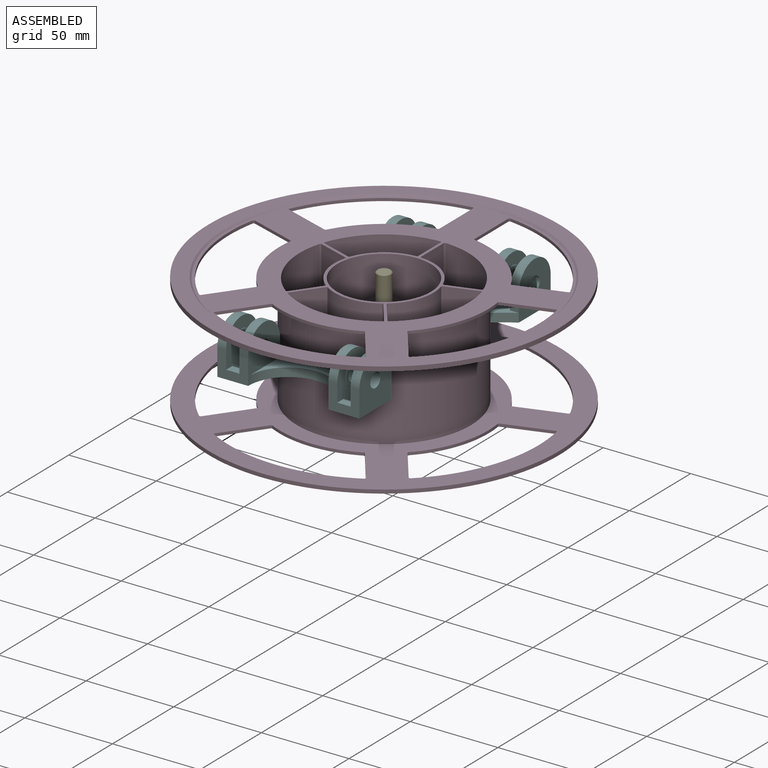
[diagram: assembled view]
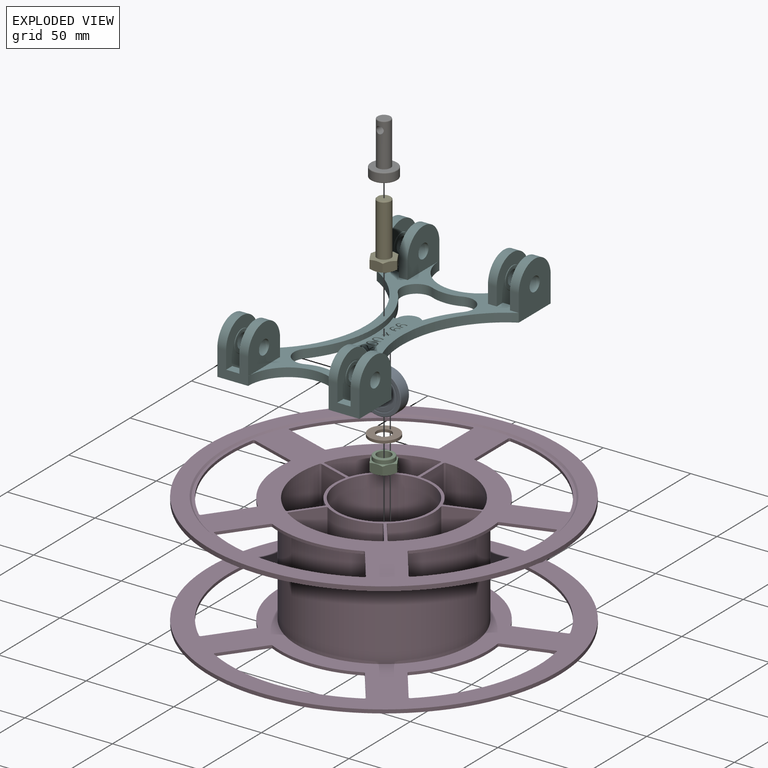
[diagram: exploded view]
GUIDED TOUR — FREECAD ASSEMBLY "Spool Roller"

This assembly has 8 components, labeled P0..P7 below (a component is one placed body or linked part; the same part can appear more than once), held together by 0 modeled joints plus 22 derived contact edges. A joint is a constraint between two components; its type names the relative motion it leaves free:
  CONTACT — a derived adjacency edge — the two components touch in the source model (clearance under 2% of the assembly's diagonal); it is measured from the geometry, not a modeled constraint.
Axis/direction vectors are unit vectors and 'through' points are millimeter coordinates, both in the assembly's world frame.

MATES
  1. CONTACT "contact_0_1": P0 <-> P1, contact direction (0.000, 0.000, 1.000) through (3.34, -3.03, 1.62) mm (derived from contact, not a modeled constraint)
  2. CONTACT "contact_0_2": P0 <-> P2, contact direction (0.000, 0.000, 1.000) through (4.51, -3.46, 7.79) mm (derived from contact, not a modeled constraint)
  3. CONTACT "contact_0_4": P0 <-> P4, contact direction (0.000, 0.000, 1.000) through (2.18, -3.43, 5.54) mm (derived from contact, not a modeled constraint)
  4. CONTACT "contact_0_5": P0 <-> P5, contact direction (0.000, 0.000, 1.000) through (4.98, 3.22, 5.01) mm (derived from contact, not a modeled constraint)
  5. CONTACT "contact_0_6": P0 <-> P6, contact direction (0.000, 0.000, 1.000) through (5.99, -3.58, 0.00) mm (derived from contact, not a modeled constraint)
  6. CONTACT "contact_0_7": P0 <-> P7, contact direction (0.000, 1.000, 0.000) through (5.11, 3.08, 2.77) mm (derived from contact, not a modeled constraint)
  7. CONTACT "contact_1_2": P1 <-> P2, contact direction (0.000, 0.000, 1.000) through (0.31, 4.09, 0.00) mm (derived from contact, not a modeled constraint)
  8. CONTACT "contact_1_4": P1 <-> P4, contact direction (0.000, 0.000, 1.000) through (-8.00, 0.00, 0.25) mm (derived from contact, not a modeled constraint)
  9. CONTACT "contact_1_5": P1 <-> P5, contact direction (0.000, 0.000, 1.000) through (-1.51, 8.39, 1.50) mm (derived from contact, not a modeled constraint)
  10. CONTACT "contact_1_6": P1 <-> P6, contact direction (0.000, 0.000, 1.000) through (-7.84, -1.58, 0.19) mm (derived from contact, not a modeled constraint)
  11. CONTACT "contact_1_7": P1 <-> P7, contact direction (0.000, 0.000, 1.000) through (4.52, 0.00, 0.00) mm (derived from contact, not a modeled constraint)
  12. CONTACT "contact_2_4": P2 <-> P4, contact direction (0.000, 0.000, 1.000) through (-4.73, -4.47, 5.50) mm (derived from contact, not a modeled constraint)
  13. CONTACT "contact_2_5": P2 <-> P5, contact direction (0.000, 0.000, 1.000) through (5.03, 3.00, 5.25) mm (derived from contact, not a modeled constraint)
  14. CONTACT "contact_2_6": P2 <-> P6, contact direction (0.000, 0.000, 1.000) through (3.75, -6.50, 0.50) mm (derived from contact, not a modeled constraint)
  15. CONTACT "contact_2_7": P2 <-> P7, contact direction (0.000, 1.000, 0.000) through (-5.59, 2.56, 0.00) mm (derived from contact, not a modeled constraint)
  16. CONTACT "contact_3_5": P3 <-> P5, contact direction (0.000, 0.000, 1.000) through (22.53, 56.90, 28.33) mm (derived from contact, not a modeled constraint)
  17. CONTACT "contact_4_5": P4 <-> P5, contact direction (0.000, 0.000, -1.000) through (5.28, 3.21, 5.25) mm (derived from contact, not a modeled constraint)
  18. CONTACT "contact_4_6": P4 <-> P6, contact direction (0.000, 0.000, -1.000) through (7.51, 0.00, 0.50) mm (derived from contact, not a modeled constraint)
  19. CONTACT "contact_4_7": P4 <-> P7, contact direction (0.000, 0.000, -1.000) through (5.59, 2.56, 0.00) mm (derived from contact, not a modeled constraint)
  20. CONTACT "contact_5_6": P5 <-> P6, contact direction (0.000, 0.000, 1.000) through (-0.94, -7.45, 0.75) mm (derived from contact, not a modeled constraint)
  21. CONTACT "contact_5_7": P5 <-> P7, contact direction (0.000, 0.000, -1.000) through (-4.97, 0.01, 2.33) mm (derived from contact, not a modeled constraint)
  22. CONTACT "contact_6_7": P6 <-> P7, contact direction (0.000, 0.000, -1.000) through (5.89, 2.50, 0.00) mm (derived from contact, not a modeled constraint)

ASSEMBLY ORDER
  1. P4 — the base component [order heuristic]
  2. P6 — core [order heuristic]
  3. P5 [order verified]
  4. P2 — core [order heuristic]
  5. P7 — core [order heuristic]
  6. P1 — core [order heuristic]
  7. P3 [order verified]
  8. P0 — core [order heuristic]
Order-tag legend:
  [order verified] — this step's position reverses a verified removal order: the component was checked to insert without passing through the ones already placed.
  [order heuristic] — the first 6 components form the assembly's core: parts whose collision-free extraction could not be verified, listed in mate-graph order.

Of the 8 components, 8 carry a construction recipe — the FreeCAD feature program (sketches with constraints, then the solid features that consume them) that regenerates the part from scratch, quoted from this document or from the linked companion document it references; the rest are supplied as boundary geometry only. The tour below walks the components in assembly order: each is shown spotlighted twice — in the assembled view, then in the exploded view, where a leader line traces a displaced component back to its assembled socket (components that stay in place when exploded have no leader line; saturated green if recipe-attached, orange if geometry-only; every other component desaturated gray) — followed by its recipe or geometry summary and the mates that hold it.
NOTE — this tour is split across 2 documents so each fits a 32k-token context. This is document 1: the component sections continue in the remaining 1 document, each repeating the header above.
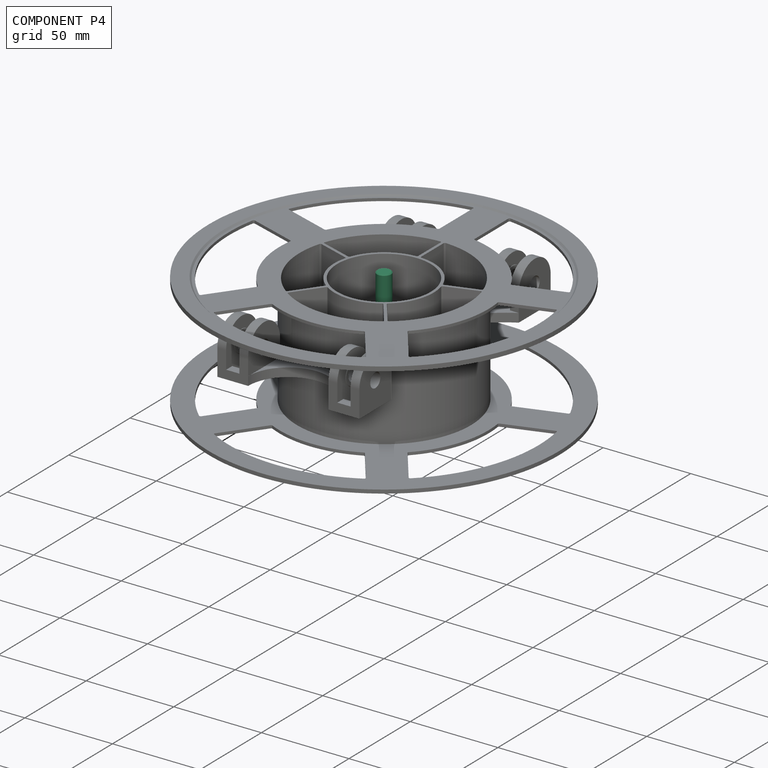
[diagram: component P4 — assembled]
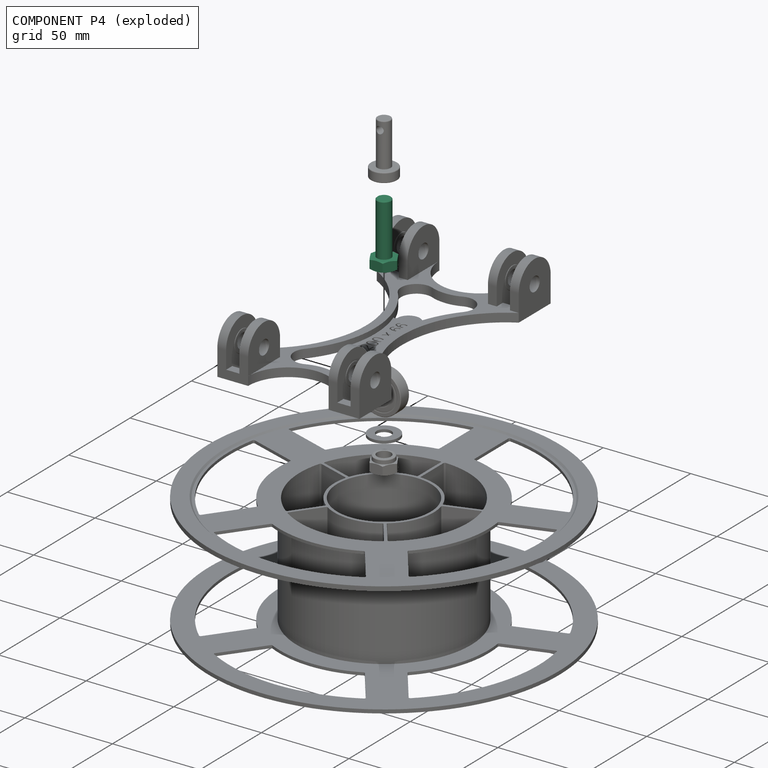
[diagram: component P4 — exploded]
COMPONENT P4 — recipe-attached ("Bolt", modeled in this document).
Held by: resting contact with P0 (derived edge); resting contact with P1 (derived edge); resting contact with P2 (derived edge); resting contact with P5 (derived edge); resting contact with P6 (derived edge); resting contact with P7 (derived edge).
Construction recipe (the document's own serialized feature program — sketch geometry with constraints, then the solid features built on it; lengths are millimeters unless a unit is written):

FEATURE [Sketcher::SketchObject] Sketch027
  ArcFitTolerance = 1e-06
  AttachmentSupport = -> [XY_Plane007]
  FullyConstrained = true
  MakeInternals = false
  MapMode = 5
FEATURE [Sketcher::SketchObject] Sketch028
  ArcFitTolerance = 1e-06
  AttachmentSupport = -> [XY_Plane007]
  FullyConstrained = true
  MakeInternals = false
  MapMode = 5
  expr: Constraints[19] = <<Spreadsheet>>.BoltHeadSize
  sketch-geometry (7):
    g0: LineSegment StartX=7.50555 StartY=0 StartZ=0 EndX=3.75278 EndY=6.5 EndZ=0
    g1: LineSegment StartX=3.75278 StartY=6.5 StartZ=0 EndX=-3.75278 EndY=6.5 EndZ=0
    g2: LineSegment StartX=-3.75278 StartY=6.5 StartZ=0 EndX=-7.50555 EndY=1.0747e-12 EndZ=0
    g3: LineSegment StartX=-7.50555 StartY=1.0747e-12 StartZ=0 EndX=-3.75278 EndY=-6.5 EndZ=0
    g4: LineSegment StartX=-3.75278 StartY=-6.5 StartZ=0 EndX=3.75278 EndY=-6.5 EndZ=0
    g5: LineSegment StartX=3.75278 StartY=-6.5 StartZ=0 EndX=7.50555 EndY=0 EndZ=0
    g6: Circle [constr] CenterX=0 CenterY=0 CenterZ=0 NormalX=0 NormalY=0 NormalZ=1 AngleXU=0 Radius=7.50555
  constraints (16):
    c: Coincident(g0,g1)
    c: Coincident(g1,g2)
    c: Coincident(g2,g3)
    c: Coincident(g3,g4)
    c: Coincident(g4,g5)
    c: Coincident(g5,g0)
    c: Equal(g0, g1-g5) x5
    c: PointOnObject(g0,g6)
    c: PointOnObject(g1,g6)
    c: PointOnObject(g2,g6)
    c: PointOnObject(g3,g6)
    c: PointOnObject(g4,g6)
    c: PointOnObject(g5,g6)
    c: Coincident(g6,g-1)
    c: PointOnObject(g5,g-1)
    c: DistanceY(g4,g0) = 13
FEATURE [PartDesign::Pad] Pad008
  Direction = (0,0,1)
  Length = 5.5
  Length2 = 10
  Profile = -> Sketch028
  ReferenceAxis = -> Sketch028 [N_Axis]
  Refine = true
  Suppressed = false
  Type = 0
  expr: Length = <<Spreadsheet>>.BoltHeadHeight
FEATURE [Sketcher::SketchObject] Sketch029
  ArcFitTolerance = 1e-06
  AttachmentSupport = -> [Pad008]
  FullyConstrained = true
  MakeInternals = false
  MapMode = 5
  Placement = pos=(0,0,5.5) rot=(0,0,1;0rad)
  expr: Constraints[1] = <<Spreadsheet>>.BallBearingInnerDiameter
  sketch-geometry (1):
    g0: Circle CenterX=0 CenterY=0 CenterZ=0 NormalX=0 NormalY=0 NormalZ=1 AngleXU=0 Radius=4
  constraints (2):
    c: Coincident(g0,g-1)
    c: Diameter(g0) = 8
FEATURE [PartDesign::Pad] Pad009
  BaseFeature = -> Pad008
  Direction = (0,0,1)
  Length = 30
  Length2 = 10
  Profile = -> Sketch029
  ReferenceAxis = -> Sketch029 [N_Axis]
  Refine = true
  Suppressed = false
  Type = 0
  expr: Length = <<Spreadsheet>>.BoltLength
FEATURE [Sketcher::SketchObject] Sketch030
  ArcFitTolerance = 1e-06
  AttachmentSupport = -> [XZ_Plane007]
  ExternalGeometry = -> [Pad009]
  FullyConstrained = true
  MakeInternals = false
  MapMode = 5
  Placement = pos=(0,0,0) rot=(1,0,0;1.5708rad)
  expr: Constraints[20] = <<Spreadsheet>>.BoltRoundings
  expr: Constraints[22] = <<Spreadsheet>>.BoltRoundings * 2
  sketch-geometry (9):
    g0: LineSegment StartX=4 StartY=35.5 StartZ=0 EndX=3.5 EndY=35.5 EndZ=0
    g1: LineSegment StartX=3.5 StartY=35.5 StartZ=0 EndX=4 EndY=35 EndZ=0
    g2: LineSegment StartX=4 StartY=35 StartZ=0 EndX=4 EndY=35.5 EndZ=0
    g3: LineSegment StartX=7.50555 StartY=5.5 StartZ=0 EndX=6.50555 EndY=5.5 EndZ=0
    g4: LineSegment StartX=6.50555 StartY=5.5 StartZ=0 EndX=7.50555 EndY=5 EndZ=0
    g5: LineSegment StartX=7.50555 StartY=0 StartZ=0 EndX=6.50555 EndY=0 EndZ=0
    g6: LineSegment StartX=7.50555 StartY=5 StartZ=0 EndX=7.50555 EndY=5.5 EndZ=0
    g7: LineSegment StartX=6.50555 StartY=0 StartZ=0 EndX=7.50555 EndY=0.5 EndZ=0
    g8: LineSegment StartX=7.50555 StartY=0.5 StartZ=0 EndX=7.50555 EndY=0 EndZ=0
  constraints (24):
    c: Coincident(g-3,g0)
    c: Horizontal(g0)
    c: Coincident(g0,g1)
    c: Coincident(g1,g2)
    c: Coincident(g2,g0)
    c: Vertical(g2)
    c: Coincident(g3,g4)
    c: Horizontal(g3)
    c: PointOnObject(g5,g-1)
    c: Coincident(g6,g4)
    c: Coincident(g6,g3)
    c: Equal(g6,g2)
    c: Equal(g2,g0)
    c: Coincident(g5,g7)
    c: Coincident(g7,g8)
    c: Coincident(g8,g5)
    c: Vertical(g8)
    c: Equal(g6,g8)
    c: Coincident(g5,g-4)
    c: Coincident(g3,g-4)
    c: DistanceY(g6,g6) = 0.5
    c: Equal(g3,g5)
    c: DistanceX(g3,g3) = 1
    c: Vertical(g6)
FEATURE [PartDesign::Groove] Groove001
  Angle = 360
  Angle2 = 60
  Axis = (0,2e-16,1)
  Base = (0,0,0)
  BaseFeature = -> Pad009
  Profile = -> Sketch030
  ReferenceAxis = -> Sketch030 [V_Axis]
  Refine = true
  Suppressed = false
  Type = 0
FEATURE [PartDesign::CoordinateSystem] Face006
  AttacherType = Attacher::AttachEngine3D
  AttachmentSupport = -> [Groove001]
  MapMode = 11
  Placement = pos=(0,0,5.5) rot=(0,0,1;1.5708rad)
FEATURE [PartDesign::Body] Body006  label="Bolt"
  AllowCompound = false
  Group = -> [Sketch027,Sketch028,Pad008,Sketch029,Pad009,Sketch030,Groove001,Face006]
  Origin = -> Origin007
  Tip = -> Groove001
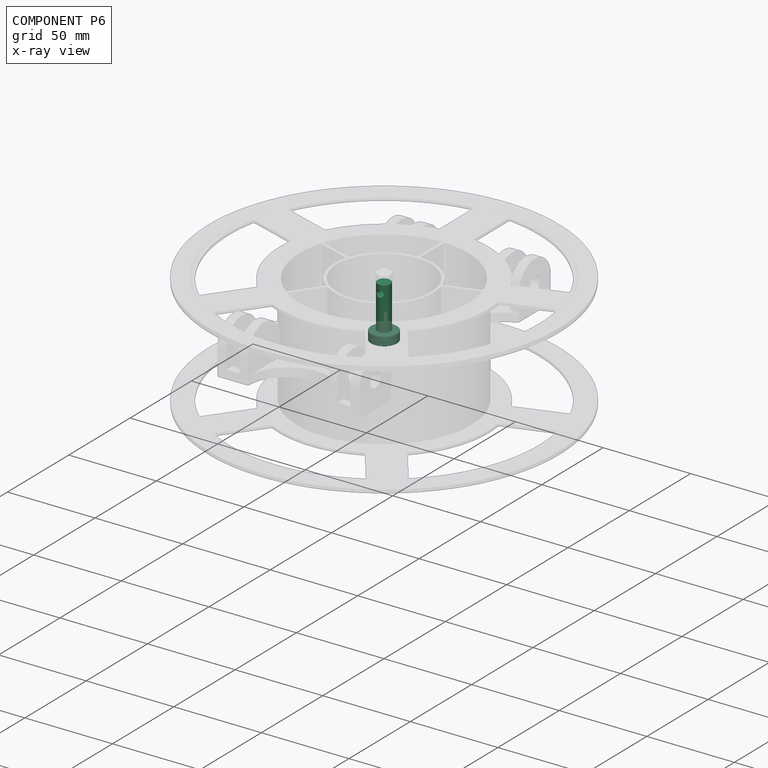
[diagram: component P6 — x-ray view]
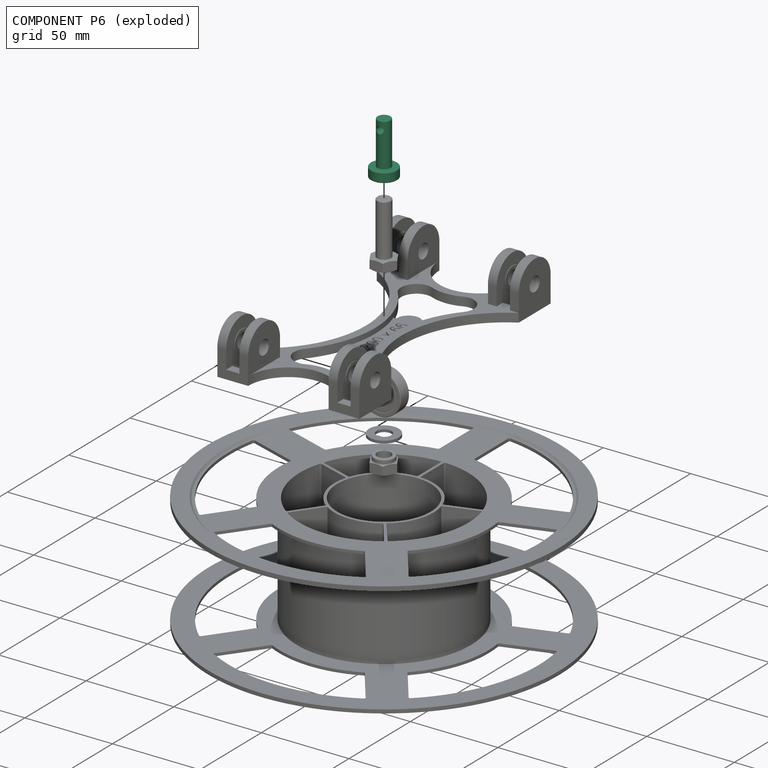
[diagram: component P6 — exploded]
COMPONENT P6 — recipe-attached ("Bearing Axle", modeled in this document).
Held by: resting contact with P0 (derived edge); resting contact with P1 (derived edge); resting contact with P2 (derived edge); resting contact with P4 (derived edge); resting contact with P5 (derived edge); resting contact with P7 (derived edge).
Construction recipe (the document's own serialized feature program — sketch geometry with constraints, then the solid features built on it; lengths are millimeters unless a unit is written):

FEATURE [Sketcher::SketchObject] Sketch038
  ArcFitTolerance = 1e-06
  AttachmentSupport = -> [XZ_Plane009]
  FullyConstrained = true
  MakeInternals = false
  MapMode = 5
  Placement = pos=(0,0,0) rot=(1,0,0;1.5708rad)
  expr: Constraints[19] = <<Spreadsheet>>.BearingAxleCornerRadius
  expr: Constraints[20] = <<Spreadsheet>>.BoltHeadHeight
  expr: Constraints[21] = <<Spreadsheet>>.BearingAxleHeadDiameter / 2
  expr: Constraints[22] = (<<Spreadsheet>>.BallBearingInnerDiameter - <<Spreadsheet>>.BearingAxleDiameterTolerance * 2) / 2
  expr: Constraints[23] = <<Spreadsheet>>.BearingAxleLength
  sketch-geometry (12):
    g0: LineSegment StartX=0 StartY=0 StartZ=0 EndX=7.00555 EndY=0 EndZ=0
    g1: LineSegment StartX=7.50555 StartY=0.5 StartZ=0 EndX=7.50555 EndY=5 EndZ=0
    g2: LineSegment StartX=7.00555 StartY=5.5 StartZ=0 EndX=3.8 EndY=5.5 EndZ=0
    g3: LineSegment StartX=3.8 StartY=5.5 StartZ=0 EndX=3.8 EndY=29.8379 EndZ=0
    g4: LineSegment StartX=3.3 StartY=30.3379 StartZ=0 EndX=0 EndY=30.3379 EndZ=0
    g5: LineSegment StartX=0 StartY=30.3379 StartZ=0 EndX=0 EndY=0 EndZ=0
    g6: ArcOfCircle CenterX=3.3 CenterY=29.8379 CenterZ=0 NormalX=0 NormalY=0 NormalZ=1 AngleXU=0 Radius=0.5 StartAngle=1.6e-15 EndAngle=1.5708
    g7: GeomPoint [constr] X=3.8 Y=30.3379 Z=0
    g8: ArcOfCircle CenterX=7.00555 CenterY=0.5 CenterZ=0 NormalX=0 NormalY=0 NormalZ=1 AngleXU=0 Radius=0.5 StartAngle=4.71239 EndAngle=6.28319
    g9: GeomPoint [constr] X=7.50555 Y=0 Z=0
    g10: ArcOfCircle CenterX=7.00555 CenterY=5 CenterZ=0 NormalX=0 NormalY=0 NormalZ=1 AngleXU=0 Radius=0.5 StartAngle=0 EndAngle=1.5708
    g11: GeomPoint [constr] X=7.50555 Y=5.5 Z=0
  constraints (29):
    c: Coincident(g-1,g0)
    c: PointOnObject(g9,g-1)
    c: Vertical(g1)
    c: Horizontal(g2)
    c: Coincident(g2,g3)
    c: Vertical(g3)
    c: Horizontal(g4)
    c: Coincident(g4,g5)
    c: Coincident(g5,g0)
    c: Vertical(g5)
    c: PointOnObject(g7,g3)
    c: PointOnObject(g7,g4)
    c: Tangent(g3,g6) = -1.5708
    c: Tangent(g4,g6) = -1.5708
    c: PointOnObject(g9,g0)
    c: PointOnObject(g9,g1)
    c: Tangent(g0,g8) = -1.5708
    c: Tangent(g1,g8) = -1.5708
    c: Equal(g8,g6)
    c: Radius(g6) = 0.5
    c: DistanceY(g11) = 5.5
    c: DistanceX(g11) = 7.50555
    c: DistanceX(g2) = 3.8
    c: DistanceY(g2,g4) = 24.8379
    c: PointOnObject(g11,g1)
    c: PointOnObject(g11,g2)
    c: Tangent(g1,g10) = -1.5708
    c: Tangent(g2,g10) = -1.5708
    c: Equal(g8,g10)
FEATURE [PartDesign::Revolution] Revolution008
  Angle = 360
  Angle2 = 60
  Axis = (0,2e-16,1)
  Base = (0,0,0)
  Placement = pos=(0,0,0) rot=(1,0,0;1.5708rad)
  Profile = -> Sketch038
  ReferenceAxis = -> Sketch038 [V_Axis]
  Refine = true
  Reversed = true
  Suppressed = false
  Type = 0
FEATURE [Sketcher::SketchObject] Sketch039
  ArcFitTolerance = 1e-06
  AttachmentSupport = -> [XZ_Plane009]
  ExternalGeometry = -> [Revolution008]
  FullyConstrained = true
  MakeInternals = false
  MapMode = 5
  Placement = pos=(0,0,0) rot=(1,0,0;1.5708rad)
  expr: Constraints[1] = <<Spreadsheet>>.BearingAxlePinHoleDiameter
  expr: Constraints[2] = <<Spreadsheet>>.BearingAxlePinHolePosition
  sketch-geometry (1):
    g0: Circle CenterX=0 CenterY=25.3856 CenterZ=0 NormalX=0 NormalY=0 NormalZ=1 AngleXU=0 Radius=2.08562
  constraints (3):
    c: PointOnObject(g0,g-2)
    c: Diameter(g0) = 4.17124
    c: DistanceY(g-3,g0) = 19.8856
FEATURE [PartDesign::Pocket] Pocket
  BaseFeature = -> Revolution008
  Direction = (0,1,-2e-16)
  Length = 5
  Length2 = 5
  Midplane = true
  Placement = pos=(0,0,0) rot=(1,0,0;1.5708rad)
  Profile = -> Sketch039
  ReferenceAxis = -> Sketch039 [N_Axis]
  Refine = true
  Suppressed = false
  Type = 1
FEATURE [PartDesign::CoordinateSystem] MountFace
  AttacherType = Attacher::AttachEngine3D
  AttachmentSupport = -> [Pocket]
  MapMode = 11
  Placement = pos=(0,1.2e-15,5.5) rot=(0.707107,-0.707107,0;3.14159rad)
FEATURE [PartDesign::CoordinateSystem] AxlePin
  AttacherType = Attacher::AttachEngine3D
  AttachmentOffset = pos=(0,0,-1) rot=(0,0,1;0rad)
  AttachmentSupport = -> [Pocket]
  MapMode = 45
  Placement = pos=(-1.4344e-09,-4.495,25.3856) rot=(0.57735,0.57735,0.57735;4.18879rad)
FEATURE [PartDesign::Body] Body008  label="Bearing Axle"
  AllowCompound = false
  Group = -> [Sketch038,Revolution008,Sketch039,Pocket,MountFace,AxlePin]
  Origin = -> Origin009
  Tip = -> Pocket
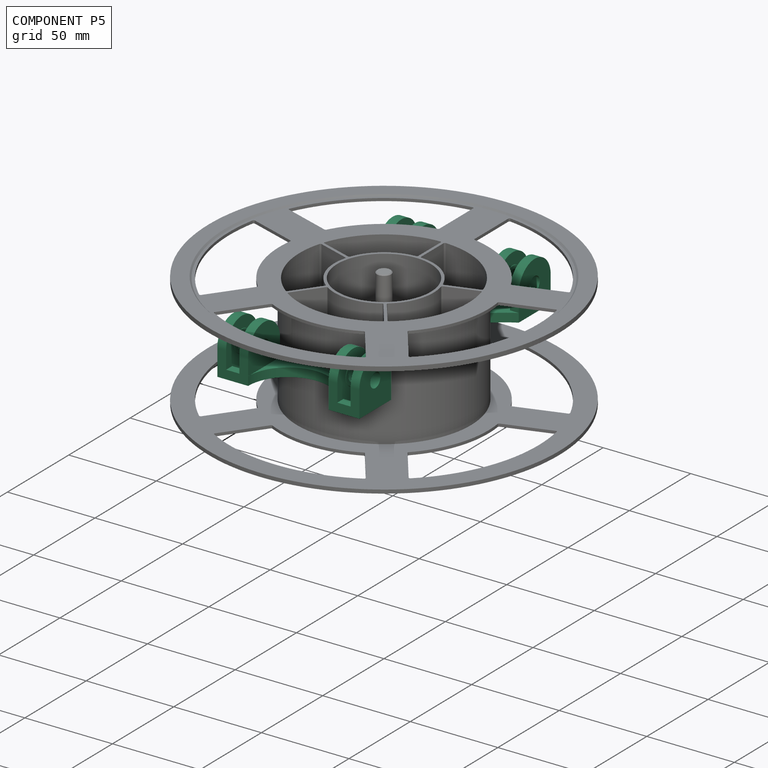
[diagram: component P5 — assembled]
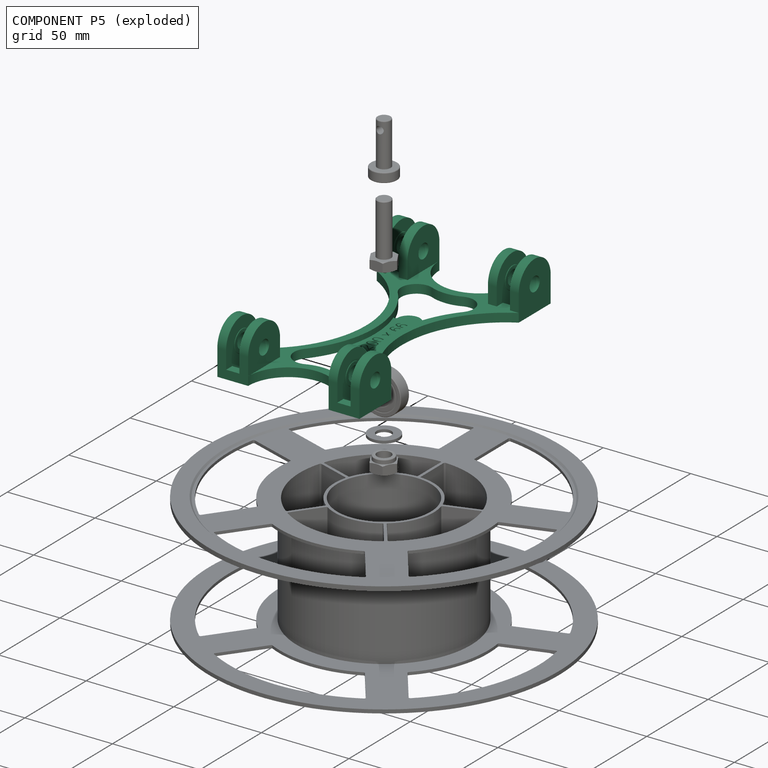
[diagram: component P5 — exploded]
COMPONENT P5 — recipe-attached ("Base", modeled in this document).
Held by: resting contact with P0 (derived edge); resting contact with P1 (derived edge); resting contact with P2 (derived edge); resting contact with P3 (derived edge); resting contact with P4 (derived edge); resting contact with P6 (derived edge); resting contact with P7 (derived edge).
Construction recipe (the document's own serialized feature program — sketch geometry with constraints, then the solid features built on it; lengths are millimeters unless a unit is written):

FEATURE [Sketcher::SketchObject] Sketch031
  ArcFitTolerance = 1e-06
  AttachmentSupport = -> [XY_Plane008]
  FullyConstrained = true
  MakeInternals = false
  MapMode = 5
  expr: Constraints[119] = <<Spreadsheet>>.BaseArmWidth
  expr: Constraints[120] = <<Spreadsheet>>.BaseArmWidth
  expr: Constraints[25] = <<Spreadsheet>>.BaseFootLength
  expr: Constraints[26] = <<Spreadsheet>>.BaseFootWidth
  expr: Constraints[29] = <<Spreadsheet>>.BaseBearingsXDistance
  expr: Constraints[32] = <<MainSketch001>>.Constraints.BearingDistance
  expr: Constraints[53] = <<Spreadsheet>>.BaseArmWidth
  expr: Constraints[59] = <<Spreadsheet>>.BaseArmWidth
  expr: Constraints[67] = <<Spreadsheet>>.BaseArmWidth
  expr: Constraints[68] = <<Spreadsheet>>.BaseArmWidth * 2
  sketch-geometry (46):
    g0: LineSegment StartX=-40.55 StartY=51.9692 StartZ=0 EndX=-40.55 EndY=77.9692 EndZ=0
    g1: LineSegment StartX=-40.55 StartY=77.9692 StartZ=0 EndX=-22.95 EndY=77.9692 EndZ=0
    g2: LineSegment StartX=22.95 StartY=77.9692 StartZ=0 EndX=40.55 EndY=77.9692 EndZ=0
    g3: LineSegment StartX=40.55 StartY=77.9692 StartZ=0 EndX=40.55 EndY=51.9692 EndZ=0
    g4: LineSegment StartX=-40.55 StartY=-51.9692 StartZ=0 EndX=-40.55 EndY=-77.9692 EndZ=0
    g5: LineSegment StartX=-40.55 StartY=-77.9692 StartZ=0 EndX=-22.95 EndY=-77.9692 EndZ=0
    g6: LineSegment StartX=22.95 StartY=-77.9692 StartZ=0 EndX=40.55 EndY=-77.9692 EndZ=0
    g7: LineSegment StartX=40.55 StartY=-77.9692 StartZ=0 EndX=40.55 EndY=-51.9692 EndZ=0
    g8: ArcOfCircle CenterX=1.8e-15 CenterY=77.9692 CenterZ=0 NormalX=0 NormalY=0 NormalZ=1 AngleXU=0 Radius=22.95 StartAngle=3.14159 EndAngle=6.28319
    g9: ArcOfCircle CenterX=-5e-16 CenterY=-77.9692 CenterZ=0 NormalX=0 NormalY=0 NormalZ=1 AngleXU=0 Radius=22.95 StartAngle=-9.41742e-10 EndAngle=3.14159
    g10: GeomPoint X=-31.75 Y=77.9692 Z=0
    g11: GeomPoint X=31.75 Y=77.9692 Z=0
    g12: GeomPoint X=-40.55 Y=64.9692 Z=0
    g13: GeomPoint X=-40.55 Y=-64.9692 Z=0
    g14: ArcOfCircle CenterX=-64.4779 CenterY=0 CenterZ=0 NormalX=0 NormalY=0 NormalZ=1 AngleXU=0 Radius=59.4779 StartAngle=5.58952 EndAngle=6.97685
    g15: ArcOfCircle CenterX=64.4779 CenterY=0 CenterZ=0 NormalX=0 NormalY=0 NormalZ=1 AngleXU=0 Radius=59.4779 StartAngle=2.44792 EndAngle=3.83526
    g16: ArcOfCircle CenterX=0 CenterY=-72.9692 CenterZ=0 NormalX=0 NormalY=0 NormalZ=1 AngleXU=0 Radius=22.95 StartAngle=1.18223 EndAngle=1.95936
    g17: ArcOfCircle CenterX=0 CenterY=72.9692 CenterZ=0 NormalX=0 NormalY=0 NormalZ=1 AngleXU=0 Radius=22.95 StartAngle=4.32383 EndAngle=5.10095
    g18: ArcOfCircle CenterX=-12.0122 CenterY=43.6264 CenterZ=0 NormalX=0 NormalY=0 NormalZ=1 AngleXU=0 Radius=8.75635 StartAngle=1.18223 EndAngle=3.83526
    g19: ArcOfCircle CenterX=12.0122 CenterY=43.6264 CenterZ=0 NormalX=0 NormalY=0 NormalZ=1 AngleXU=0 Radius=8.75635 StartAngle=5.58952 EndAngle=8.24254
    g20: ArcOfCircle CenterX=-12.0122 CenterY=-43.6264 CenterZ=0 NormalX=0 NormalY=0 NormalZ=1 AngleXU=0 Radius=8.75635 StartAngle=2.44792 EndAngle=5.10095
    g21: ArcOfCircle CenterX=12.0122 CenterY=-43.6264 CenterZ=0 NormalX=0 NormalY=0 NormalZ=1 AngleXU=0 Radius=8.75635 StartAngle=4.32383 EndAngle=6.97685
    g22: LineSegment [constr] StartX=40.55 StartY=51.9692 StartZ=0 EndX=22.95 EndY=51.9692 EndZ=0
    g23: LineSegment [constr] StartX=22.95 StartY=51.9692 StartZ=0 EndX=22.95 EndY=77.9692 EndZ=0
    g24: ArcOfCircle CenterX=-69.4779 CenterY=-5.3e-15 CenterZ=0 NormalX=0 NormalY=0 NormalZ=1 AngleXU=0 Radius=59.4779 StartAngle=5.22031 EndAngle=7.34606
    g25: ArcOfCircle CenterX=69.4779 CenterY=-1.6e-15 CenterZ=0 NormalX=0 NormalY=0 NormalZ=1 AngleXU=0 Radius=59.4779 StartAngle=2.07872 EndAngle=4.20447
    g26: LineSegment StartX=-27.95 StartY=56.9692 StartZ=0 EndX=-27.95 EndY=72.9692 EndZ=0
    g27: LineSegment StartX=-27.95 StartY=72.9692 StartZ=0 EndX=-35.55 EndY=72.9692 EndZ=0
    g28: LineSegment StartX=-35.55 StartY=72.9692 StartZ=0 EndX=-35.55 EndY=56.9692 EndZ=0
    g29: LineSegment StartX=-35.55 StartY=56.9692 StartZ=0 EndX=-27.95 EndY=56.9692 EndZ=0
    g30: GeomPoint [constr] X=-31.75 Y=64.9692 Z=0
    g31: LineSegment StartX=35.55 StartY=56.9692 StartZ=0 EndX=35.55 EndY=72.9692 EndZ=0
    g32: LineSegment StartX=35.55 StartY=72.9692 StartZ=0 EndX=27.95 EndY=72.9692 EndZ=0
    g33: LineSegment StartX=27.95 StartY=72.9692 StartZ=0 EndX=27.95 EndY=56.9692 EndZ=0
    g34: LineSegment StartX=27.95 StartY=56.9692 StartZ=0 EndX=35.55 EndY=56.9692 EndZ=0
    g35: GeomPoint [constr] X=31.75 Y=64.9692 Z=0
    g36: LineSegment StartX=-27.95 StartY=-72.9692 StartZ=0 EndX=-27.95 EndY=-56.9692 EndZ=0
    g37: LineSegment StartX=-27.95 StartY=-56.9692 StartZ=0 EndX=-35.55 EndY=-56.9692 EndZ=0
    g38: LineSegment StartX=-35.55 StartY=-56.9692 StartZ=0 EndX=-35.55 EndY=-72.9692 EndZ=0
    g39: LineSegment StartX=-35.55 StartY=-72.9692 StartZ=0 EndX=-27.95 EndY=-72.9692 EndZ=0
    g40: GeomPoint [constr] X=-31.75 Y=-64.9692 Z=0
    g41: LineSegment StartX=35.55 StartY=-72.9692 StartZ=0 EndX=35.55 EndY=-56.9692 EndZ=0
    g42: LineSegment StartX=35.55 StartY=-56.9692 StartZ=0 EndX=27.95 EndY=-56.9692 EndZ=0
    g43: LineSegment StartX=27.95 StartY=-56.9692 StartZ=0 EndX=27.95 EndY=-72.9692 EndZ=0
    g44: LineSegment StartX=27.95 StartY=-72.9692 StartZ=0 EndX=35.55 EndY=-72.9692 EndZ=0
    g45: GeomPoint [constr] X=31.75 Y=-64.9692 Z=0
  constraints (121):
    c: Vertical(g0)
    c: Coincident(g0,g1)
    c: Horizontal(g1)
    c: Horizontal(g2)
    c: Coincident(g2,g3)
    c: Vertical(g4)
    c: Coincident(g4,g5)
    c: Horizontal(g5)
    c: Coincident(g6,g7)
    c: Vertical(g7)
    c: Coincident(g8,g1)
    c: Coincident(g8,g2)
    c: Coincident(g9,g5)
    c: Coincident(g9,g6)
    c: Equal(g1,g2)
    c: Equal(g2,g6)
    c: Equal(g6,g5)
    c: Equal(g4,g0)
    c: Equal(g0,g3)
    c: Equal(g3,g7)
    c: Equal(g9,g8)
    c: Vertical(g3)
    c: Horizontal(g6)
    c: Symmetric(g6,g5,g-2)
    c: Symmetric(g7,g3,g-1)
    c: DistanceY(g0,g0) = 26
    c: DistanceX(g1,g1) = 17.6
    c: Symmetric(g1,g1,g10)
    c: Symmetric(g2,g2,g11)
    c: DistanceX(g10,g11) = 63.5
    c: Symmetric(g0,g0,g12)
    c: Symmetric(g4,g4,g13)
    c: DistanceY(g13,g12) = 129.938
    c: Perpendicular(g8,g1)
    c: Vertical(g5,g1)
    c: Tangent(g19,g15) = 1.5708
    c: Tangent(g19,g17) = 1.5708
    c: Tangent(g18,g14) = 1.5708
    c: Tangent(g18,g17) = 1.5708
    c: Tangent(g20,g14) = 1.5708
    c: Tangent(g20,g16) = 1.5708
    c: Tangent(g21,g16) = 1.5708
    c: Tangent(g21,g15) = 1.5708
    c: Equal(g9,g16)
    c: Equal(g16,g17)
    c: PointOnObject(g16,g-2)
    c: PointOnObject(g15,g-1)
    c: Equal(g14,g15)
    c: Equal(g18,g19)
    c: Equal(g19,g21)
    c: Equal(g21,g20)
    c: Symmetric(g15,g14,g-2)
    c: Symmetric(g16,g17,g-1)
    c: DistanceY(g9,g16) = 5
    c: Coincident(g22,g3)
    c: Horizontal(g22)
    c: Coincident(g23,g22)
    c: Coincident(g23,g2)
    c: Vertical(g23)
    c: Distance(g22,g19) = 5
    c: Horizontal(g1,g2)
    c: Coincident(g24,g0)
    c: Coincident(g24,g4)
    c: Coincident(g25,g3)
    c: Coincident(g25,g7)
    c: Equal(g25,g15)
    c: Equal(g14,g24)
    c: DistanceX(g15,g25) = 5
    c: Distance(g15,g14) = 10
    c: Coincident(g26,g27)
    c: Coincident(g27,g28)
    c: Coincident(g28,g29)
    c: Coincident(g29,g26)
    c: Vertical(g26)
    c: Vertical(g28)
    c: Horizontal(g27)
    c: Horizontal(g29)
    c: Symmetric(g28,g26,g30)
    c: Coincident(g31,g32)
    c: Coincident(g32,g33)
    c: Coincident(g33,g34)
    c: Coincident(g34,g31)
    c: Vertical(g31)
    c: Vertical(g33)
    c: Horizontal(g32)
    c: Horizontal(g34)
    c: Symmetric(g33,g31,g35)
    c: Coincident(g36,g37)
    c: Coincident(g37,g38)
    c: Coincident(g38,g39)
    c: Coincident(g39,g36)
    c: Vertical(g36)
    c: Vertical(g38)
    c: Horizontal(g37)
    c: Horizontal(g39)
    c: Symmetric(g38,g36,g40)
    c: Coincident(g41,g42)
    c: Coincident(g42,g43)
    c: Coincident(g43,g44)
    c: Coincident(g44,g41)
    c: Vertical(g41)
    c: Vertical(g43)
    c: Horizontal(g42)
    c: Horizontal(g44)
    c: Symmetric(g43,g41,g45)
    c: Horizontal(g13,g40)
    c: Horizontal(g40,g45)
    c: Horizontal(g12,g30)
    c: Horizontal(g30,g35)
    c: Vertical(g35,g11)
    c: Vertical(g11,g45)
    c: Vertical(g40,g30)
    c: Vertical(g30,g10)
    c: Equal(g37,g42)
    c: Equal(g42,g34)
    c: Equal(g34,g29)
    c: Equal(g41,g36)
    c: Equal(g36,g26)
    c: Equal(g26,g31)
    c: DistanceX(g41,g6) = 5
    c: DistanceY(g6,g41) = 5
FEATURE [PartDesign::Pad] Pad010
  Direction = (0,0,1)
  Length = 5
  Length2 = 10
  Profile = -> Sketch031
  ReferenceAxis = -> Sketch031 [N_Axis]
  Suppressed = false
  Type = 0
  expr: Length = <<Spreadsheet>>.BaseBottomThickness
FEATURE [Sketcher::SketchObject] Sketch032  label="MainSketch001"
  ArcFitTolerance = 1e-06
  AttachmentSupport = -> [YZ_Plane008]
  FullyConstrained = true
  MakeInternals = false
  MapMode = 5
  Placement = pos=(0,0,0) rot=(0.57735,0.57735,0.57735;2.0944rad)
  expr: Constraints[1] = <<Spreadsheet>>.BallBearingOuterDiameter
  expr: Constraints[25] = <<Spreadsheet>>.BaseBottomThickness
  expr: Constraints[27] = <<Spreadsheet>>.BallBearingZCenter
  expr: Constraints[6] = <<Spreadsheet>>.SpoolOuterDiameter
  sketch-geometry (11):
    g0: Circle CenterX=64.9692 CenterY=15 CenterZ=0 NormalX=0 NormalY=0 NormalZ=1 AngleXU=0 Radius=11
    g1: Circle CenterX=-64.9692 CenterY=15 CenterZ=0 NormalX=0 NormalY=0 NormalZ=1 AngleXU=0 Radius=11
    g2: Circle CenterX=0 CenterY=105 CenterZ=0 NormalX=0 NormalY=0 NormalZ=1 AngleXU=0 Radius=100
    g3: GeomPoint X=0 Y=5 Z=0
    g4: LineSegment [constr] StartX=64.9692 StartY=15 StartZ=0 EndX=0 EndY=15 EndZ=0
    g5: LineSegment [constr] StartX=0 StartY=15 StartZ=0 EndX=0 EndY=105 EndZ=0
    g6: LineSegment [constr] StartX=0 StartY=15 StartZ=0 EndX=0 EndY=5 EndZ=0
    g7: LineSegment [constr] StartX=0 StartY=5 StartZ=0 EndX=64.9692 EndY=15 EndZ=0
    g8: LineSegment StartX=64.9692 StartY=15 StartZ=0 EndX=58.5308 EndY=23.9189 EndZ=0
    g9: LineSegment [constr] StartX=58.5308 StartY=23.9189 StartZ=0 EndX=0 EndY=105 EndZ=0
    g10: LineSegment [constr] StartX=0 StartY=0 StartZ=0 EndX=0 EndY=5 EndZ=0
  constraints (28):
    c: Symmetric(g1,g0,g-2)
    c: Diameter(g0) = 22
    c: Equal(g0,g1)
    c: Distance(g0,g-1) = 4
    c: PointOnObject(g2,g-2)
    c: Tangent(g2,g0)
    c: Diameter(g2) = 200
    c: DistanceX(g1,g0) = 129.938  'BearingDistance'
    c: DistanceY(g2) = 105  'SpoolZCenter'
    c: PointOnObject(g3,g2)
    c: PointOnObject(g3,g-2)
    c: PointOnObject(g4,g-2)
    c: Coincident(g4,g5)
    c: Coincident(g4,g6)
    c: Coincident(g6,g3)
    c: Coincident(g6,g7)
    c: Horizontal(g4)
    c: Coincident(g7,g0)
    c: Coincident(g8,g4)
    c: PointOnObject(g8,g2)
    c: Coincident(g9,g2)
    c: Tangent(g9,g8) = -1.5708
    c: Coincident(g4,g0)
    c: Coincident(g10,g-1)
    c: Coincident(g10,g3)
    c: Distance(g10) = 5
    c: Coincident(g5,g2)
    c: DistanceY(g1) = 15
FEATURE [Sketcher::SketchObject] Sketch033
  ArcFitTolerance = 1e-06
  AttachmentSupport = -> [Pad010]
  ExternalGeometry = -> [Pad010]
  FullyConstrained = true
  MakeInternals = false
  MapMode = 5
  Placement = pos=(0,0,5) rot=(0,0,1;0rad)
  expr: Constraints[86] = <<Spreadsheet>>.BearingMountsThickness
  sketch-geometry (32):
    g0: LineSegment StartX=-22.95 StartY=-77.9692 StartZ=0 EndX=-22.95 EndY=-51.9692 EndZ=0
    g1: LineSegment StartX=-22.95 StartY=-51.9692 StartZ=0 EndX=-27.95 EndY=-51.9692 EndZ=0
    g2: LineSegment StartX=-27.95 StartY=-51.9692 StartZ=0 EndX=-27.95 EndY=-77.9692 EndZ=0
    g3: LineSegment StartX=-27.95 StartY=-77.9692 StartZ=0 EndX=-22.95 EndY=-77.9692 EndZ=0
    g4: LineSegment StartX=22.95 StartY=-77.9692 StartZ=0 EndX=27.95 EndY=-77.9692 EndZ=0
    g5: LineSegment StartX=27.95 StartY=-77.9692 StartZ=0 EndX=27.95 EndY=-51.9692 EndZ=0
    g6: LineSegment StartX=27.95 StartY=-51.9692 StartZ=0 EndX=22.95 EndY=-51.9692 EndZ=0
    g7: LineSegment StartX=22.95 StartY=-51.9692 StartZ=0 EndX=22.95 EndY=-77.9692 EndZ=0
    g8: LineSegment StartX=40.55 StartY=-77.9692 StartZ=0 EndX=40.55 EndY=-51.9692 EndZ=0
    g9: LineSegment StartX=40.55 StartY=-51.9692 StartZ=0 EndX=35.55 EndY=-51.9692 EndZ=0
    g10: LineSegment StartX=35.55 StartY=-51.9692 StartZ=0 EndX=35.55 EndY=-77.9692 EndZ=0
    g11: LineSegment StartX=35.55 StartY=-77.9692 StartZ=0 EndX=40.55 EndY=-77.9692 EndZ=0
    g12: LineSegment StartX=40.55 StartY=77.9692 StartZ=0 EndX=35.55 EndY=77.9692 EndZ=0
    g13: LineSegment StartX=35.55 StartY=77.9692 StartZ=0 EndX=35.55 EndY=51.9692 EndZ=0
    g14: LineSegment StartX=35.55 StartY=51.9692 StartZ=0 EndX=40.55 EndY=51.9692 EndZ=0
    g15: LineSegment StartX=40.55 StartY=51.9692 StartZ=0 EndX=40.55 EndY=77.9692 EndZ=0
    g16: LineSegment StartX=22.95 StartY=77.9692 StartZ=0 EndX=22.95 EndY=51.9692 EndZ=0
    g17: LineSegment StartX=22.95 StartY=51.9692 StartZ=0 EndX=27.95 EndY=51.9692 EndZ=0
    g18: LineSegment StartX=27.95 StartY=51.9692 StartZ=0 EndX=27.95 EndY=77.9692 EndZ=0
    g19: LineSegment StartX=27.95 StartY=77.9692 StartZ=0 EndX=22.95 EndY=77.9692 EndZ=0
    g20: LineSegment StartX=-40.55 StartY=77.9692 StartZ=0 EndX=-40.55 EndY=51.9692 EndZ=0
    g21: LineSegment StartX=-40.55 StartY=51.9692 StartZ=0 EndX=-35.55 EndY=51.9692 EndZ=0
    g22: LineSegment StartX=-35.55 StartY=51.9692 StartZ=0 EndX=-35.55 EndY=77.9692 EndZ=0
    g23: LineSegment StartX=-35.55 StartY=77.9692 StartZ=0 EndX=-40.55 EndY=77.9692 EndZ=0
    g24: LineSegment StartX=-22.95 StartY=77.9692 StartZ=0 EndX=-27.95 EndY=77.9692 EndZ=0
    g25: LineSegment StartX=-27.95 StartY=77.9692 StartZ=0 EndX=-27.95 EndY=51.9692 EndZ=0
    g26: LineSegment StartX=-27.95 StartY=51.9692 StartZ=0 EndX=-22.95 EndY=51.9692 EndZ=0
    g27: LineSegment StartX=-22.95 StartY=51.9692 StartZ=0 EndX=-22.95 EndY=77.9692 EndZ=0
    g28: LineSegment StartX=-40.55 StartY=-77.9692 StartZ=0 EndX=-35.55 EndY=-77.9692 EndZ=0
    g29: LineSegment StartX=-35.55 StartY=-77.9692 StartZ=0 EndX=-35.55 EndY=-51.9692 EndZ=0
    g30: LineSegment StartX=-35.55 StartY=-51.9692 StartZ=0 EndX=-40.55 EndY=-51.9692 EndZ=0
    g31: LineSegment StartX=-40.55 StartY=-51.9692 StartZ=0 EndX=-40.55 EndY=-77.9692 EndZ=0
  constraints (88):
    c: Coincident(g0,g1)
    c: Coincident(g1,g2)
    c: Coincident(g2,g3)
    c: Coincident(g3,g0)
    c: Vertical(g0)
    c: Vertical(g2)
    c: Horizontal(g1)
    c: Horizontal(g3)
    c: Coincident(g4,g5)
    c: Coincident(g5,g6)
    c: Coincident(g6,g7)
    c: Coincident(g7,g4)
    c: Horizontal(g4)
    c: Horizontal(g6)
    c: Vertical(g5)
    c: Vertical(g7)
    c: Coincident(g4,g-5)
    c: Coincident(g8,g9)
    c: Coincident(g9,g10)
    c: Coincident(g10,g11)
    c: Coincident(g11,g8)
    c: Vertical(g8)
    c: Vertical(g10)
    c: Horizontal(g9)
    c: Horizontal(g11)
    c: Coincident(g8,g-5)
    c: Coincident(g12,g13)
    c: Coincident(g13,g14)
    c: Coincident(g14,g15)
    c: Coincident(g15,g12)
    c: Horizontal(g12)
    c: Horizontal(g14)
    c: Vertical(g13)
    c: Vertical(g15)
    c: Coincident(g12,g-3)
    c: Coincident(g16,g17)
    c: Coincident(g17,g18)
    c: Coincident(g18,g19)
    c: Coincident(g19,g16)
    c: Vertical(g16)
    c: Vertical(g18)
    c: Horizontal(g17)
    c: Horizontal(g19)
    c: Coincident(g16,g-3)
    c: Coincident(g20,g21)
    c: Coincident(g21,g22)
    c: Coincident(g22,g23)
    c: Coincident(g23,g20)
    c: Vertical(g22)
    c: Horizontal(g21)
    c: Horizontal(g23)
    c: Coincident(g20,g-4)
    c: Coincident(g24,g25)
    c: Coincident(g25,g26)
    c: Coincident(g26,g27)
    c: Coincident(g27,g24)
    c: Horizontal(g24)
    c: Horizontal(g26)
    c: Vertical(g25)
    c: Vertical(g27)
    c: Equal(g20,g25)
    c: Equal(g25,g16)
    c: Equal(g16,g13)
    c: Equal(g2,g7)
    c: Equal(g7,g10)
    c: Equal(g9,g6)
    c: Equal(g6,g1)
    c: Equal(g26,g21)
    c: Equal(g21,g17)
    c: Equal(g17,g14)
    c: Coincident(g20,g-4)
    c: Coincident(g24,g-6)
    c: Coincident(g28,g29)
    c: Coincident(g29,g30)
    c: Coincident(g30,g31)
    c: Coincident(g31,g28)
    c: Horizontal(g28)
    c: Horizontal(g30)
    c: Vertical(g29)
    c: Vertical(g31)
    c: Coincident(g28,g-7)
    c: Equal(g31,g2)
    c: Equal(g31,g20)
    c: Coincident(g0,g-7)
    c: Equal(g1,g30)
    c: Equal(g30,g21)
    c: DistanceX(g23,g23) = 5
    c: DistanceX(g21,g25) = 7.6
FEATURE [PartDesign::Pad] Pad011
  BaseFeature = -> Pad010
  Direction = (0,0,1)
  Length = 23
  Length2 = 10
  Profile = -> Sketch033
  ReferenceAxis = -> Sketch033 [N_Axis]
  Suppressed = false
  Type = 0
  expr: Length = <<Spreadsheet>>.BallBearingOuterDiameter + <<Spreadsheet>>.BearingMountsExtraDiameter - <<Spreadsheet>>.BaseBottomThickness + <<Spreadsheet>>.BearingMountsExtraHeight
FEATURE [Sketcher::SketchObject] Sketch034
  ArcFitTolerance = 1e-06
  AttachmentSupport = -> [Pad011]
  ExternalGeometry = -> [Pad011]
  FullyConstrained = true
  MakeInternals = false
  MapMode = 5
  Placement = pos=(-40.55,0,0) rot=(0.57735,-0.57735,-0.57735;2.0944rad)
  expr: Constraints[12] = <<Spreadsheet>>.BearingMountsHoleDiameter
  sketch-geometry (12):
    g0: ArcOfCircle CenterX=64.9692 CenterY=15 CenterZ=0 NormalX=0 NormalY=0 NormalZ=1 AngleXU=0 Radius=13 StartAngle=0 EndAngle=3.14159
    g1: LineSegment StartX=77.9692 StartY=15 StartZ=0 EndX=77.9692 EndY=28 EndZ=0
    g2: LineSegment StartX=51.9692 StartY=15 StartZ=0 EndX=51.9692 EndY=28 EndZ=0
    g3: LineSegment StartX=51.9692 StartY=28 StartZ=0 EndX=64.9692 EndY=28 EndZ=0
    g4: LineSegment StartX=64.9692 StartY=28 StartZ=0 EndX=77.9692 EndY=28 EndZ=0
    g5: Circle CenterX=64.9692 CenterY=15 CenterZ=0 NormalX=0 NormalY=0 NormalZ=1 AngleXU=0 Radius=4.1
    g6: Circle CenterX=-64.9692 CenterY=15 CenterZ=0 NormalX=0 NormalY=0 NormalZ=1 AngleXU=0 Radius=4.1
    g7: ArcOfCircle CenterX=-64.9692 CenterY=15 CenterZ=0 NormalX=0 NormalY=0 NormalZ=1 AngleXU=0 Radius=13 StartAngle=0 EndAngle=3.14159
    g8: LineSegment StartX=-77.9692 StartY=15 StartZ=0 EndX=-77.9692 EndY=28 EndZ=0
    g9: LineSegment StartX=-51.9692 StartY=15 StartZ=0 EndX=-51.9692 EndY=28 EndZ=0
    g10: LineSegment StartX=-77.9692 StartY=28 StartZ=0 EndX=-64.9692 EndY=28 EndZ=0
    g11: LineSegment StartX=-64.9692 StartY=28 StartZ=0 EndX=-51.9692 EndY=28 EndZ=0
  constraints (26):
    c: Tangent(g1,g0) = -1.5708
    c: Coincident(g1,g-3)
    c: Vertical(g1)
    c: Tangent(g2,g0) = 1.5708
    c: Coincident(g2,g-3)
    c: Vertical(g2)
    c: Coincident(g3,g2)
    c: Tangent(g3,g0) = 1.5708
    c: Coincident(g4,g3)
    c: Coincident(g4,g1)
    c: Horizontal(g4)
    c: Coincident(g5,g0)
    c: Diameter(g5) = 8.2
    c: Coincident(g7,g6)
    c: Coincident(g9,g-4)
    c: Coincident(g8,g-4)
    c: Vertical(g8)
    c: Vertical(g9)
    c: Tangent(g9,g7) = -1.5708
    c: Tangent(g8,g7) = 1.5708
    c: Tangent(g7,g-4)
    c: Coincident(g10,g8)
    c: Symmetric(g-4,g-4,g10)
    c: Coincident(g11,g10)
    c: Coincident(g11,g9)
    c: Equal(g6,g5)
FEATURE [PartDesign::Pocket] Pocket003
  BaseFeature = -> Pad011
  Direction = (1,0,0)
  Length = 5
  Length2 = 5
  Profile = -> Sketch034
  ReferenceAxis = -> Sketch034 [N_Axis]
  Suppressed = false
  Type = 1
FEATURE [PartDesign::Plane] DatumPlane001
  AttachmentSupport = -> [Pocket003]
  Length = 103.591
  MapMode = 45
  Placement = pos=(0,-2.65e-14,15) rot=(0,0,1;0rad)
  ResizeMode = 0
  Width = 178.43
FEATURE [Sketcher::SketchObject] Sketch035
  ArcFitTolerance = 1e-06
  AttachmentSupport = -> [DatumPlane001]
  ExternalGeometry = -> [Pocket003]
  FullyConstrained = true
  MakeInternals = false
  MapMode = 5
  Placement = pos=(0,-2.65e-14,15) rot=(0,0,1;0rad)
  expr: Constraints[19] = 45 °
  expr: Constraints[20] = <<Spreadsheet>>.BearingMountsFlangeThickness
  expr: Constraints[21] = <<Spreadsheet>>.BearingMountsFlangeDiameter
  sketch-geometry (16):
    g0: LineSegment StartX=-27.95 StartY=69.0692 StartZ=0 EndX=-28.15 EndY=69.0692 EndZ=0
    g1: LineSegment StartX=-28.15 StartY=69.0692 StartZ=0 EndX=-28.15 EndY=71.0692 EndZ=0
    g2: LineSegment StartX=-28.15 StartY=71.0692 StartZ=0 EndX=-27.95 EndY=71.2692 EndZ=0
    g3: LineSegment StartX=-27.95 StartY=71.2692 StartZ=0 EndX=-27.95 EndY=69.0692 EndZ=0
    g4: LineSegment StartX=-35.55 StartY=69.0692 StartZ=0 EndX=-35.35 EndY=69.0692 EndZ=0
    g5: LineSegment StartX=-35.35 StartY=69.0692 StartZ=0 EndX=-35.35 EndY=71.0692 EndZ=0
    g6: LineSegment StartX=-35.35 StartY=71.0692 StartZ=0 EndX=-35.55 EndY=71.2692 EndZ=0
    g7: LineSegment StartX=-35.55 StartY=71.2692 StartZ=0 EndX=-35.55 EndY=69.0692 EndZ=0
    g8: LineSegment StartX=27.95 StartY=69.0692 StartZ=0 EndX=28.15 EndY=69.0692 EndZ=0
    g9: LineSegment StartX=28.15 StartY=69.0692 StartZ=0 EndX=28.15 EndY=71.0692 EndZ=0
    g10: LineSegment StartX=28.15 StartY=71.0692 StartZ=0 EndX=27.95 EndY=71.2692 EndZ=0
    g11: LineSegment StartX=27.95 StartY=71.2692 StartZ=0 EndX=27.95 EndY=69.0692 EndZ=0
    g12: LineSegment StartX=35.55 StartY=69.0692 StartZ=0 EndX=35.35 EndY=69.0692 EndZ=0
    g13: LineSegment StartX=35.35 StartY=69.0692 StartZ=0 EndX=35.35 EndY=71.0692 EndZ=0
    g14: LineSegment StartX=35.35 StartY=71.0692 StartZ=0 EndX=35.55 EndY=71.2692 EndZ=0
    g15: LineSegment StartX=35.55 StartY=71.2692 StartZ=0 EndX=35.55 EndY=69.0692 EndZ=0
  constraints (44):
    c: Horizontal(g0)
    c: Coincident(g0,g1)
    c: Vertical(g1)
    c: Coincident(g1,g2)
    c: Coincident(g2,g3)
    c: Coincident(g3,g0)
    c: Vertical(g3)
    c: Coincident(g-4,g4)
    c: Horizontal(g4)
    c: Coincident(g4,g5)
    c: Coincident(g5,g6)
    c: Coincident(g6,g7)
    c: Coincident(g7,g4)
    c: Vertical(g7)
    c: Vertical(g5)
    c: Equal(g5,g1)
    c: Coincident(g0,g-3)
    c: Equal(g3,g7)
    c: Equal(g6,g2)
    c: Angle(g2,g3) = 0.785398
    c: DistanceX(g0,g0) = 0.2
    c: DistanceY(g1,g1) = 2
    c: Horizontal(g8)
    c: Coincident(g8,g9)
    c: Vertical(g9)
    c: Coincident(g9,g10)
    c: Coincident(g10,g11)
    c: Coincident(g11,g8)
    c: Vertical(g11)
    c: Horizontal(g12)
    c: Coincident(g12,g13)
    c: Coincident(g13,g14)
    c: Coincident(g14,g15)
    c: Coincident(g15,g12)
    c: Vertical(g15)
    c: Vertical(g13)
    c: Equal(g13,g9)
    c: Equal(g11,g15)
    c: Equal(g14,g10)
    c: Angle(g10,g11) = -0.785398
    c: Symmetric(g10,g2,g-2)
    c: Equal(g3,g11)
    c: Symmetric(g14,g6,g-2)
    c: Equal(g8,g0)
FEATURE [PartDesign::Revolution] Revolution006
  Angle = 360
  Angle2 = 60
  Axis = (-1,0,0)
  Base = (-40.55,64.9692,15)
  BaseFeature = -> Pocket003
  Profile = -> Sketch035
  ReferenceAxis = -> Pocket003 [Edge96]
  Reversed = true
  Suppressed = false
  Type = 0
FEATURE [Sketcher::SketchObject] Sketch036
  ArcFitTolerance = 1e-06
  AttachmentSupport = -> [DatumPlane001]
  ExternalGeometry = -> [Revolution006]
  FullyConstrained = true
  MakeInternals = false
  MapMode = 5
  Placement = pos=(0,-2.65e-14,15) rot=(0,0,1;0rad)
  expr: Constraints[20] = <<Spreadsheet>>.BearingMountsFlangeDiameter
  expr: Constraints[21] = <<Spreadsheet>>.BearingMountsFlangeThickness
  sketch-geometry (16):
    g0: LineSegment StartX=-27.95 StartY=-60.8692 StartZ=0 EndX=-27.95 EndY=-58.6692 EndZ=0
    g1: LineSegment StartX=-27.95 StartY=-58.6692 StartZ=0 EndX=-28.15 EndY=-58.8692 EndZ=0
    g2: LineSegment StartX=-28.15 StartY=-58.8692 StartZ=0 EndX=-28.15 EndY=-60.8692 EndZ=0
    g3: LineSegment StartX=-28.15 StartY=-60.8692 StartZ=0 EndX=-27.95 EndY=-60.8692 EndZ=0
    g4: LineSegment StartX=-35.55 StartY=-60.8692 StartZ=0 EndX=-35.35 EndY=-60.8692 EndZ=0
    g5: LineSegment StartX=-35.35 StartY=-60.8692 StartZ=0 EndX=-35.35 EndY=-58.8692 EndZ=0
    g6: LineSegment StartX=-35.35 StartY=-58.8692 StartZ=0 EndX=-35.55 EndY=-58.6692 EndZ=0
    g7: LineSegment StartX=-35.55 StartY=-58.6692 StartZ=0 EndX=-35.55 EndY=-60.8692 EndZ=0
    g8: LineSegment StartX=27.95 StartY=-60.8692 StartZ=0 EndX=27.95 EndY=-58.6692 EndZ=0
    g9: LineSegment StartX=27.95 StartY=-58.6692 StartZ=0 EndX=28.15 EndY=-58.8692 EndZ=0
    g10: LineSegment StartX=28.15 StartY=-58.8692 StartZ=0 EndX=28.15 EndY=-60.8692 EndZ=0
    g11: LineSegment StartX=28.15 StartY=-60.8692 StartZ=0 EndX=27.95 EndY=-60.8692 EndZ=0
    g12: LineSegment StartX=35.55 StartY=-60.8692 StartZ=0 EndX=35.35 EndY=-60.8692 EndZ=0
    g13: LineSegment StartX=35.35 StartY=-60.8692 StartZ=0 EndX=35.35 EndY=-58.8692 EndZ=0
    g14: LineSegment StartX=35.35 StartY=-58.8692 StartZ=0 EndX=35.55 EndY=-58.6692 EndZ=0
    g15: LineSegment StartX=35.55 StartY=-58.6692 StartZ=0 EndX=35.55 EndY=-60.8692 EndZ=0
  constraints (45):
    c: Coincident(g-3,g0)
    c: Vertical(g0)
    c: Coincident(g0,g1)
    c: Coincident(g1,g2)
    c: Vertical(g2)
    c: Coincident(g2,g3)
    c: Coincident(g3,g0)
    c: Coincident(g-4,g4)
    c: Horizontal(g4)
    c: Coincident(g4,g5)
    c: Coincident(g5,g6)
    c: Coincident(g6,g7)
    c: Coincident(g7,g4)
    c: Vertical(g7)
    c: Vertical(g5)
    c: Horizontal(g3)
    c: Equal(g0,g7)
    c: Equal(g4,g3)
    c: Equal(g2,g5)
    c: Angle(g1,g0) = 0.785398
    c: DistanceY(g2,g2) = 2
    c: DistanceX(g3,g3) = 0.2
    c: DistanceX(g4,g2) = 7.2
    c: Vertical(g8)
    c: Coincident(g8,g9)
    c: Coincident(g9,g10)
    c: Vertical(g10)
    c: Coincident(g10,g11)
    c: Coincident(g11,g8)
    c: Horizontal(g12)
    c: Coincident(g12,g13)
    c: Coincident(g13,g14)
    c: Coincident(g14,g15)
    c: Coincident(g15,g12)
    c: Vertical(g15)
    c: Vertical(g13)
    c: Horizontal(g11)
    c: Equal(g8,g15)
    c: Equal(g12,g11)
    c: Equal(g10,g13)
    c: Angle(g9,g8) = -0.785398
    c: Symmetric(g8,g0,g-2)
    c: Symmetric(g14,g6,g-2)
    c: Equal(g8,g0)
    c: Equal(g3,g11)
FEATURE [PartDesign::Revolution] Revolution007
  Angle = 360
  Angle2 = 60
  Axis = (-1,0,0)
  Base = (-40.55,-64.9692,15)
  BaseFeature = -> Revolution006
  Profile = -> Sketch036
  ReferenceAxis = -> Revolution006 [Edge270]
  Suppressed = false
  Type = 0
FEATURE [PartDesign::CoordinateSystem] Bearing006  label="Bearing2"
  AttacherType = Attacher::AttachEngine3D
  AttachmentSupport = -> [Revolution007]
  MapMode = 45
  Placement = pos=(31.75,64.9692,15) rot=(0.577352,0.577352,0.577348;4.18879rad)
FEATURE [PartDesign::CoordinateSystem] Bearing008  label="Bearing3"
  AttacherType = Attacher::AttachEngine3D
  AttachmentSupport = -> [Revolution007]
  MapMode = 45
  Placement = pos=(31.75,-64.9692,15) rot=(0.577351,0.577351,0.577349;4.18879rad)
FEATURE [PartDesign::CoordinateSystem] Bottom_Center001  label="Bottom Center001"
  AttacherType = Attacher::AttachEngine3D
  AttachmentSupport = -> [Revolution007]
  MapMode = 45
  Placement = pos=(1.4e-15,-3.9e-15,0) rot=(0,0,1;0rad)
FEATURE [Sketcher::SketchObject] Sketch037
  ArcFitTolerance = 1e-06
  AttachmentSupport = -> [XY_Plane008]
  ExternalGeometry = -> [Revolution007]
  FullyConstrained = true
  MakeInternals = false
  MapMode = 5
  expr: Constraints[2] = <<Spreadsheet>>.BaseSignWidth
  sketch-geometry (8):
    g0: ArcOfCircle CenterX=-64.4779 CenterY=0 CenterZ=0 NormalX=0 NormalY=0 NormalZ=1 AngleXU=0 Radius=59.4779 StartAngle=5.94024 EndAngle=6.62613
    g1: ArcOfCircle CenterX=64.4779 CenterY=0 CenterZ=0 NormalX=0 NormalY=0 NormalZ=1 AngleXU=0 Radius=59.4779 StartAngle=2.79865 EndAngle=3.48453
    g2: ArcOfCircle CenterX=-7.52166 CenterY=20.3363 CenterZ=0 NormalX=0 NormalY=0 NormalZ=1 AngleXU=0 Radius=1 StartAngle=3.48453 EndAngle=6.23851
    g3: ArcOfCircle CenterX=7.52166 CenterY=20.3363 CenterZ=0 NormalX=0 NormalY=0 NormalZ=1 AngleXU=0 Radius=1 StartAngle=3.18627 EndAngle=5.94024
    g4: ArcOfCircle CenterX=7.52166 CenterY=-20.3363 CenterZ=0 NormalX=0 NormalY=0 NormalZ=1 AngleXU=0 Radius=1 StartAngle=0.342942 EndAngle=3.09692
    g5: ArcOfCircle CenterX=-7.52166 CenterY=-20.3363 CenterZ=0 NormalX=0 NormalY=0 NormalZ=1 AngleXU=0 Radius=1 StartAngle=0.0446757 EndAngle=2.79865
    g6: ArcOfCircle CenterX=4.72e-14 CenterY=-20 CenterZ=0 NormalX=0 NormalY=0 NormalZ=1 AngleXU=0 Radius=6.52917 StartAngle=3.18627 EndAngle=6.23851
    g7: ArcOfCircle CenterX=1.8e-15 CenterY=20 CenterZ=0 NormalX=0 NormalY=0 NormalZ=1 AngleXU=0 Radius=6.52917 StartAngle=0.0446757 EndAngle=3.09692
  constraints (22):
    c: PointOnObject(g0,g-3)
    c: Coincident(g0,g-3)
    c: DistanceY(g0,g0) = 40
    c: Vertical(g0,g0)
    c: Horizontal(g1,g0)
    c: Horizontal(g0,g1)
    c: PointOnObject(g1,g-4)
    c: Coincident(g1,g-4)
    c: Tangent(g2,g0) = 1.5708
    c: Tangent(g7,g2) = 1.5708
    c: Tangent(g7,g3) = 1.5708
    c: Tangent(g3,g1) = 1.5708
    c: Tangent(g4,g1) = 1.5708
    c: Tangent(g6,g4) = 1.5708
    c: Tangent(g6,g5) = 1.5708
    c: Tangent(g5,g0) = 1.5708
    c: Equal(g5,g4)
    c: Equal(g4,g3)
    c: Equal(g3,g2)
    c: Radius(g4) = 1
    c: Horizontal(g6,g1)
    c: Horizontal(g7,g1)
FEATURE [PartDesign::Pad] Pad012
  BaseFeature = -> Revolution007
  Direction = (0,0,1)
  Length = 2
  Length2 = 10
  Profile = -> Sketch037
  ReferenceAxis = -> Sketch037 [N_Axis]
  Suppressed = false
  Type = 0
  expr: Length = <<Spreadsheet>>.BaseSignThickness
FEATURE [PartDesign::CoordinateSystem] Bearing005  label="Bearing4"
  AttacherType = Attacher::AttachEngine3D
  AttachmentSupport = -> [Pad012]
  MapMode = 45
  Placement = pos=(-31.75,-64.9692,15) rot=(0.577351,0.577351,0.577349;4.18879rad)
FEATURE [PartDesign::CoordinateSystem] Bearing007  label="Bearing1"
  AttacherType = Attacher::AttachEngine3D
  AttachmentSupport = -> [Pad012]
  MapMode = 45
  Placement = pos=(-31.75,64.9692,15) rot=(0.577352,0.577352,0.577348;4.18879rad)
FEATURE [PartDesign::CoordinateSystem] Washer1a001  label="Washer4b"
  AttacherType = Attacher::AttachEngine3D
  AttachmentSupport = -> [Revolution007]
  MapMode = 11
  Placement = pos=(-40.55,-64.9692,15) rot=(0,-1,0;1.5708rad)
FEATURE [PartDesign::CoordinateSystem] Washer1b001  label="Washer1b"
  AttacherType = Attacher::AttachEngine3D
  AttachmentSupport = -> [Revolution007]
  MapMode = 11
  Placement = pos=(-22.95,64.9692,15) rot=(0,-1,0;1.5708rad)
FEATURE [PartDesign::CoordinateSystem] Washer2a001  label="Washer2a"
  AttacherType = Attacher::AttachEngine3D
  AttachmentSupport = -> [Revolution007]
  MapMode = 11
  Placement = pos=(22.95,64.9692,15) rot=(0,-1,0;1.5708rad)
FEATURE [PartDesign::CoordinateSystem] Washer2b001  label="Washer2b"
  AttacherType = Attacher::AttachEngine3D
  AttachmentSupport = -> [Revolution007]
  MapMode = 11
  Placement = pos=(40.55,64.9692,15) rot=(0,-1,0;1.5708rad)
FEATURE [PartDesign::CoordinateSystem] Washer3a001  label="Washer1a"
  AttacherType = Attacher::AttachEngine3D
  AttachmentSupport = -> [Revolution007]
  MapMode = 11
  Placement = pos=(-40.55,64.9692,15) rot=(0,-1,0;1.5708rad)
FEATURE [PartDesign::CoordinateSystem] Washer3b001  label="Washer4a"
  AttacherType = Attacher::AttachEngine3D
  AttachmentSupport = -> [Revolution007]
  MapMode = 11
  Placement = pos=(-22.95,-64.9692,15) rot=(0,-1,0;1.5708rad)
FEATURE [PartDesign::CoordinateSystem] Washer4a001  label="Washer3b"
  AttacherType = Attacher::AttachEngine3D
  AttachmentSupport = -> [Revolution007]
  MapMode = 11
  Placement = pos=(22.95,-64.9692,15) rot=(0,-1,0;1.5708rad)
FEATURE [PartDesign::CoordinateSystem] Washer4b001  label="Washer3a"
  AttacherType = Attacher::AttachEngine3D
  AttachmentSupport = -> [Revolution007]
  MapMode = 11
  Placement = pos=(40.55,-64.9692,15) rot=(0,-1,0;1.5708rad)
FEATURE [Part::Part2DObjectPython] ShapeString001  # Draft 2D object (typed FeaturePython)
  FontFile = <userpath>/.fonts/ttf/arial.ttf
  Fuse = false
  Justification = 4
  JustificationReference = 0
  KeepLeftMargin = false
  MakeFace = true
  ObliqueAngle = 0
  Placement = pos=(0,0,2) rot=(0,0,1;1.5708rad)
  ScaleToSize = true
  Size = 6
  String = 200 x 66
  Tracking = 0
  expr: Size = <<Spreadsheet>>.BaseSIgnTextSize
  expr: String = <<%.0f>> % <<Spreadsheet>>.SpoolOuterDiameter + << x %0.f>> % <<Spreadsheet>>.SpoolOuterWidth
FEATURE [PartDesign::Pocket] Pocket004
  BaseFeature = -> Pad012
  Direction = (0,0,-1)
  Length = 1
  Length2 = 5
  Profile = -> ShapeString001
  ReferenceAxis = -> ShapeString001 [N_Axis]
  Refine = true
  Suppressed = false
  Type = 0
  expr: Length = <<Spreadsheet>>.BaseSignThickness / 2
FEATURE [PartDesign::CoordinateSystem] SpoolCenter
  AttacherType = Attacher::AttachEngine3D
  AttachmentSupport = -> [Sketch032]
  MapMode = 11
  Placement = pos=(0,0,105) rot=(0.707107,0,0.707107;3.14159rad)
FEATURE [PartDesign::Body] Body007  label="Base"
  AllowCompound = false
  Group = -> [Sketch031,Pad010,Sketch032,Sketch033,Pad011,Sketch034,Pocket003,DatumPlane001,Sketch035,Revolution006,Sketch036,Revolution007,Bottom_Center001,Bearing005,Bearing006,Bearing007,Bearing008,Washer1a001,Washer1b001,Washer2a001,Washer2b001,Washer3a001,Washer3b001,Washer4a001,Washer4b001,Sketch037,Pad012,ShapeString001,Pocket004,SpoolCenter]
  Origin = -> Origin008
  Tip = -> Pocket004
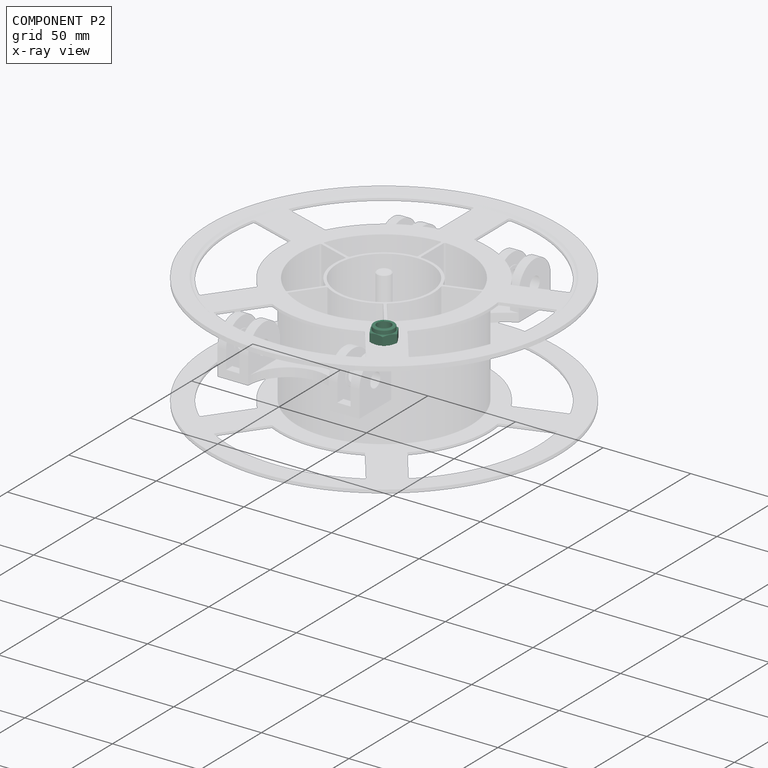
[diagram: component P2 — x-ray view]
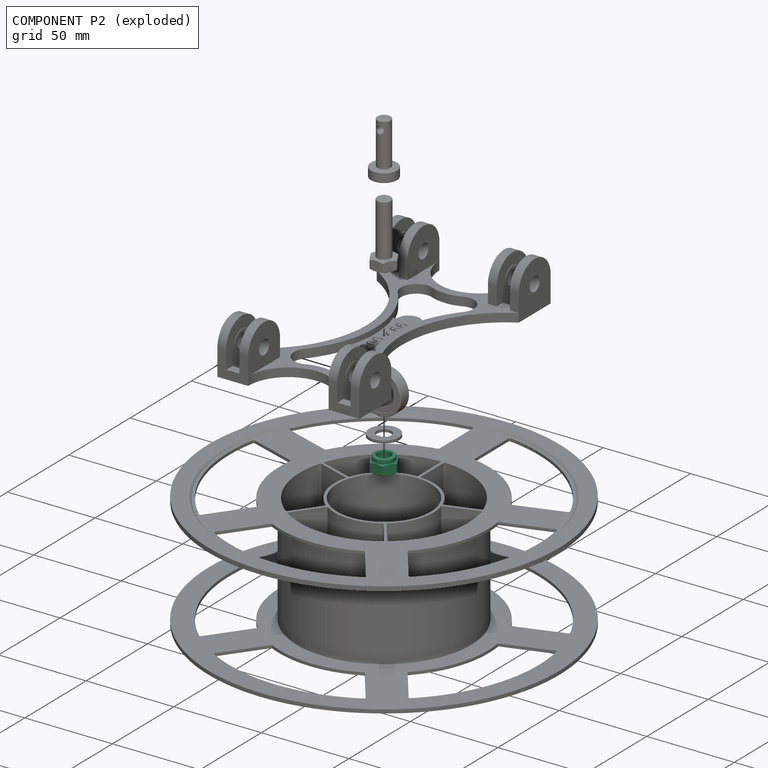
[diagram: component P2 — exploded]
COMPONENT P2 — recipe-attached ("Nut", modeled in this document).
Held by: resting contact with P0 (derived edge); resting contact with P1 (derived edge); resting contact with P4 (derived edge); resting contact with P5 (derived edge); resting contact with P6 (derived edge); resting contact with P7 (derived edge).
Construction recipe (the document's own serialized feature program — sketch geometry with constraints, then the solid features built on it; lengths are millimeters unless a unit is written):

FEATURE [Sketcher::SketchObject] Sketch024
  ArcFitTolerance = 1e-06
  AttachmentSupport = -> [XY_Plane005]
  FullyConstrained = true
  MakeInternals = false
  MapMode = 5
  expr: Constraints[19] = <<Spreadsheet>>.NutHeadSize
  expr: Constraints[21] = <<Spreadsheet>>.BallBearingInnerDiameter
  sketch-geometry (8):
    g0: LineSegment StartX=7.50555 StartY=0 StartZ=0 EndX=3.75278 EndY=6.5 EndZ=0
    g1: LineSegment StartX=3.75278 StartY=6.5 StartZ=0 EndX=-3.75278 EndY=6.5 EndZ=0
    g2: LineSegment StartX=-3.75278 StartY=6.5 StartZ=0 EndX=-7.50555 EndY=1.69331e-11 EndZ=0
    g3: LineSegment StartX=-7.50555 StartY=1.69331e-11 StartZ=0 EndX=-3.75278 EndY=-6.5 EndZ=0
    g4: LineSegment StartX=-3.75278 StartY=-6.5 StartZ=0 EndX=3.75278 EndY=-6.5 EndZ=0
    g5: LineSegment StartX=3.75278 StartY=-6.5 StartZ=0 EndX=7.50555 EndY=0 EndZ=0
    g6: Circle [constr] CenterX=0 CenterY=0 CenterZ=0 NormalX=0 NormalY=0 NormalZ=1 AngleXU=0 Radius=7.50555
    g7: Circle CenterX=0 CenterY=0 CenterZ=0 NormalX=0 NormalY=0 NormalZ=1 AngleXU=0 Radius=4
  constraints (18):
    c: Coincident(g0,g1)
    c: Coincident(g1,g2)
    c: Coincident(g2,g3)
    c: Coincident(g3,g4)
    c: Coincident(g4,g5)
    c: Coincident(g5,g0)
    c: Equal(g0, g1-g5) x5
    c: PointOnObject(g0,g6)
    c: PointOnObject(g1,g6)
    c: PointOnObject(g2,g6)
    c: PointOnObject(g3,g6)
    c: PointOnObject(g4,g6)
    c: PointOnObject(g5,g6)
    c: Coincident(g6,g-1)
    c: PointOnObject(g5,g-1)
    c: DistanceY(g4,g0) = 13
    c: Coincident(g7,g6)
    c: Diameter(g7) = 8
FEATURE [PartDesign::Pad] Pad
  Direction = (0,0,1)
  Length = 5.5
  Length2 = 10
  Profile = -> Sketch024
  ReferenceAxis = -> Sketch024 [N_Axis]
  Refine = true
  Suppressed = false
  Type = 0
  expr: Length = <<Spreadsheet>>.NutHeight
FEATURE [Sketcher::SketchObject] Sketch025
  ArcFitTolerance = 1e-06
  AttachmentSupport = -> [XZ_Plane005]
  ExternalGeometry = -> [Pad]
  FullyConstrained = true
  MakeInternals = false
  MapMode = 5
  Placement = pos=(0,0,0) rot=(1,0,0;1.5708rad)
  expr: Constraints[13] = <<Spreadsheet>>.NutRoundings
  expr: Constraints[14] = <<Spreadsheet>>.NutHeadSize / 2 * 0.9
  expr: Constraints[8] = <<Spreadsheet>>.NutTotalHeight
  sketch-geometry (6):
    g0: LineSegment StartX=4 StartY=5.5 StartZ=0 EndX=5.85 EndY=5.5 EndZ=0
    g1: LineSegment StartX=5.85 StartY=5.5 StartZ=0 EndX=5.85 EndY=7.4 EndZ=0
    g2: LineSegment StartX=5.35 StartY=7.9 StartZ=0 EndX=4 EndY=7.9 EndZ=0
    g3: LineSegment StartX=4 StartY=7.9 StartZ=0 EndX=4 EndY=5.5 EndZ=0
    g4: ArcOfCircle CenterX=5.35 CenterY=7.4 CenterZ=0 NormalX=0 NormalY=0 NormalZ=1 AngleXU=0 Radius=0.5 StartAngle=0 EndAngle=1.5708
    g5: GeomPoint [constr] X=5.85 Y=7.9 Z=0
  constraints (15):
    c: Coincident(g0,g1)
    c: Coincident(g2,g3)
    c: Coincident(g3,g0)
    c: Horizontal(g0)
    c: Horizontal(g2)
    c: Vertical(g1)
    c: Vertical(g3)
    c: Coincident(g0,g-3)
    c: DistanceY(g-1,g2) = 7.9
    c: PointOnObject(g5,g1)
    c: PointOnObject(g5,g2)
    c: Tangent(g1,g4) = -1.5708
    c: Tangent(g2,g4) = -1.5708
    c: Radius(g4) = 0.5
    c: DistanceX(g1) = 5.85
FEATURE [PartDesign::Revolution] Revolution005
  Angle = 360
  Angle2 = 60
  Axis = (0,2e-16,1)
  Base = (0,0,0)
  BaseFeature = -> Pad
  Profile = -> Sketch025
  ReferenceAxis = -> Sketch025 [V_Axis]
  Refine = true
  Reversed = true
  Suppressed = false
  Type = 0
FEATURE [Sketcher::SketchObject] Sketch026
  ArcFitTolerance = 1e-06
  AttachmentSupport = -> [XZ_Plane005]
  ExternalGeometry = -> [Revolution005]
  FullyConstrained = true
  MakeInternals = false
  MapMode = 5
  Placement = pos=(0,0,0) rot=(1,0,0;1.5708rad)
  expr: Constraints[14] = <<Spreadsheet>>.NutRoundings
  expr: Constraints[15] = <<Spreadsheet>>.NutRoundings * 2
  sketch-geometry (6):
    g0: LineSegment StartX=7.50555 StartY=5.5 StartZ=0 EndX=6.50555 EndY=5.5 EndZ=0
    g1: LineSegment StartX=6.50555 StartY=5.5 StartZ=0 EndX=7.50555 EndY=5 EndZ=0
    g2: LineSegment StartX=7.50555 StartY=5 StartZ=0 EndX=7.50555 EndY=5.5 EndZ=0
    g3: LineSegment StartX=7.50555 StartY=0 StartZ=0 EndX=6.50555 EndY=0 EndZ=0
    g4: LineSegment StartX=6.50555 StartY=0 StartZ=0 EndX=7.50555 EndY=0.5 EndZ=0
    g5: LineSegment StartX=7.50555 StartY=0.5 StartZ=0 EndX=7.50555 EndY=0 EndZ=0
  constraints (16):
    c: Coincident(g-3,g0)
    c: Horizontal(g0)
    c: Coincident(g0,g1)
    c: PointOnObject(g1,g-3)
    c: Coincident(g1,g2)
    c: Coincident(g2,g0)
    c: Coincident(g-3,g3)
    c: PointOnObject(g3,g-1)
    c: Coincident(g3,g4)
    c: PointOnObject(g4,g-3)
    c: Coincident(g4,g5)
    c: Coincident(g5,g3)
    c: Equal(g5,g2)
    c: Equal(g3,g0)
    c: DistanceY(g2,g2) = 0.5
    c: DistanceX(g0,g0) = 1
FEATURE [PartDesign::Groove] Groove
  Angle = 360
  Angle2 = 60
  Axis = (0,2e-16,1)
  Base = (0,0,0)
  BaseFeature = -> Revolution005
  Profile = -> Sketch026
  ReferenceAxis = -> Sketch026 [V_Axis]
  Refine = true
  Suppressed = false
  Type = 0
FEATURE [PartDesign::CoordinateSystem] Face
  AttacherType = Attacher::AttachEngine3D
  AttachmentSupport = -> [Groove]
  MapMode = 45
  Placement = pos=(1.034e-13,5.7e-15,0) rot=(0,0,1;0rad)
FEATURE [PartDesign::Body] Body004  label="Nut"
  AllowCompound = false
  Group = -> [Sketch024,Pad,Sketch025,Revolution005,Sketch026,Groove,Face]
  Origin = -> Origin005
  Tip = -> Groove
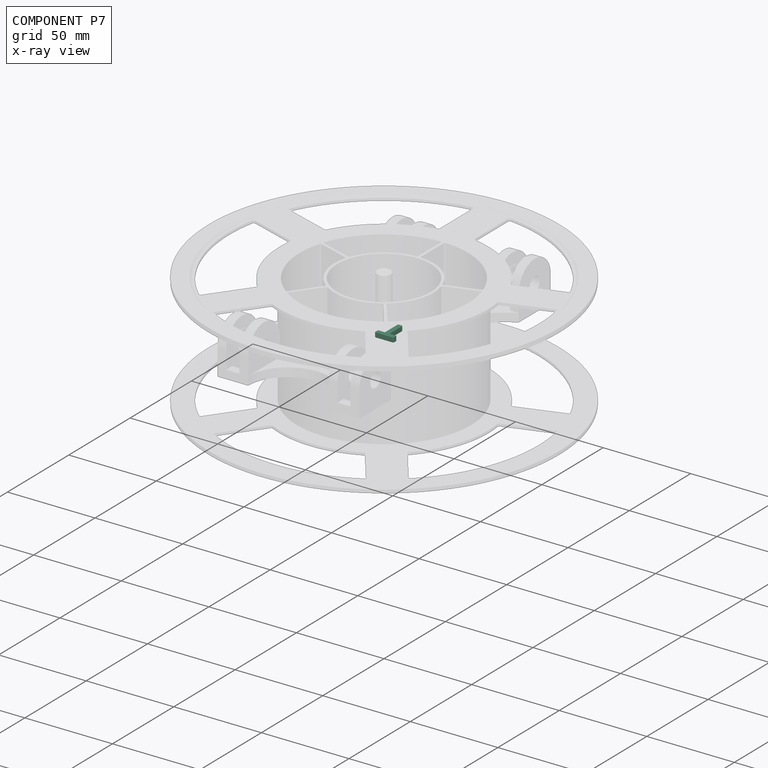
[diagram: component P7 — x-ray view]
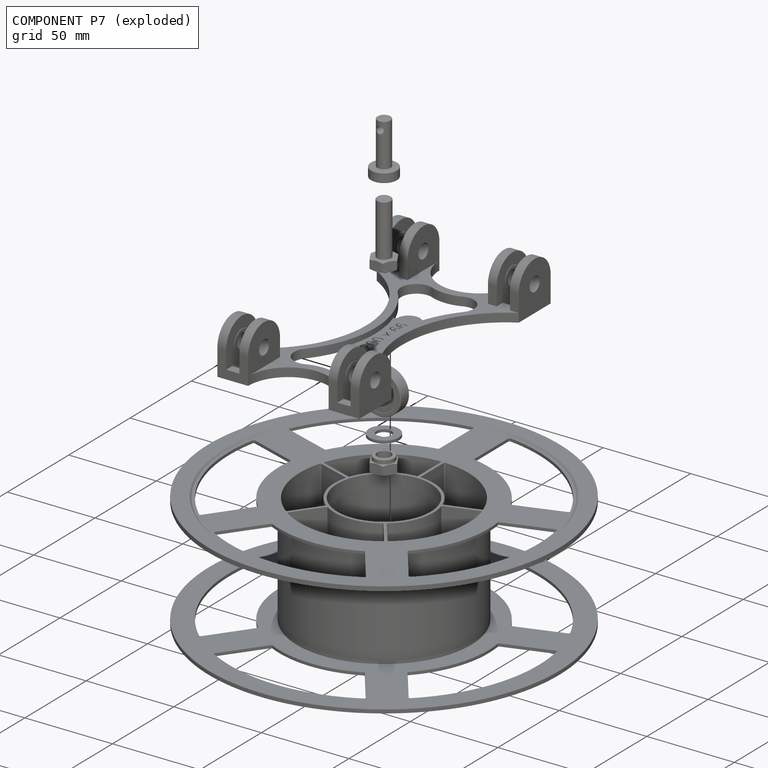
[diagram: component P7 — exploded]
COMPONENT P7 — recipe-attached ("Axle Pin", modeled in this document).
Held by: resting contact with P0 (derived edge); resting contact with P1 (derived edge); resting contact with P2 (derived edge); resting contact with P4 (derived edge); resting contact with P5 (derived edge); resting contact with P6 (derived edge).
Construction recipe (the document's own serialized feature program — sketch geometry with constraints, then the solid features built on it; lengths are millimeters unless a unit is written):

FEATURE [Sketcher::SketchObject] Sketch040
  ArcFitTolerance = 1e-06
  AttachmentSupport = -> [XY_Plane010]
  FullyConstrained = true
  MakeInternals = false
  MapMode = 5
  expr: Constraints[42] = <<Spreadsheet>>.AxlePinWidth
  expr: Constraints[43] = <<Spreadsheet>>.AxlePinWidth
  expr: Constraints[44] = <<Spreadsheet>>.AxlePinWidth * 4
  expr: Constraints[45] = <<Spreadsheet>>.AxlePinLength
  expr: Constraints[46] = <<Spreadsheet>>.AxlePinRadiuses
  sketch-geometry (20):
    g0: LineSegment StartX=-4.83333 StartY=0 StartZ=0 EndX=4.83333 EndY=0 EndZ=0
    g1: LineSegment StartX=5.33333 StartY=0.5 StartZ=0 EndX=5.33333 EndY=2.16667 EndZ=0
    g2: LineSegment StartX=4.83333 StartY=2.66667 StartZ=0 EndX=1.33333 EndY=2.66667 EndZ=0
    g3: LineSegment StartX=1.33333 StartY=2.66667 StartZ=0 EndX=1.33333 EndY=12.8333 EndZ=0
    g4: LineSegment StartX=0.833333 StartY=13.3333 StartZ=0 EndX=-0.833333 EndY=13.3333 EndZ=0
    g5: LineSegment StartX=-1.33333 StartY=12.8333 StartZ=0 EndX=-1.33333 EndY=2.66667 EndZ=0
    g6: LineSegment StartX=-1.33333 StartY=2.66667 StartZ=0 EndX=-4.83333 EndY=2.66667 EndZ=0
    g7: LineSegment StartX=-5.33333 StartY=2.16667 StartZ=0 EndX=-5.33333 EndY=0.5 EndZ=0
    g8: ArcOfCircle CenterX=4.83333 CenterY=0.5 CenterZ=0 NormalX=0 NormalY=0 NormalZ=1 AngleXU=0 Radius=0.5 StartAngle=4.71239 EndAngle=6.28319
    g9: GeomPoint [constr] X=5.33333 Y=0 Z=0
    g10: ArcOfCircle CenterX=4.83333 CenterY=2.16667 CenterZ=0 NormalX=0 NormalY=0 NormalZ=1 AngleXU=0 Radius=0.5 StartAngle=1e-16 EndAngle=1.5708
    g11: GeomPoint [constr] X=5.33333 Y=2.66667 Z=0
    g12: ArcOfCircle CenterX=0.833333 CenterY=12.8333 CenterZ=0 NormalX=0 NormalY=0 NormalZ=1 AngleXU=0 Radius=0.5 StartAngle=1.5e-15 EndAngle=1.5708
    g13: GeomPoint [constr] X=1.33333 Y=13.3333 Z=0
    g14: ArcOfCircle CenterX=-0.833333 CenterY=12.8333 CenterZ=0 NormalX=0 NormalY=0 NormalZ=1 AngleXU=0 Radius=0.5 StartAngle=1.5708 EndAngle=3.14159
    g15: GeomPoint [constr] X=-1.33333 Y=13.3333 Z=0
    g16: ArcOfCircle CenterX=-4.83333 CenterY=2.16667 CenterZ=0 NormalX=0 NormalY=0 NormalZ=1 AngleXU=0 Radius=0.5 StartAngle=1.5708 EndAngle=3.14159
    g17: GeomPoint [constr] X=-5.33333 Y=2.66667 Z=0
    g18: ArcOfCircle CenterX=-4.83333 CenterY=0.5 CenterZ=0 NormalX=0 NormalY=0 NormalZ=1 AngleXU=0 Radius=0.5 StartAngle=3.14159 EndAngle=4.71239
    g19: GeomPoint [constr] X=-5.33333 Y=0 Z=0
  constraints (47):
    c: PointOnObject(g19,g-1)
    c: Vertical(g1)
    c: Horizontal(g2)
    c: Coincident(g2,g3)
    c: Vertical(g3)
    c: Horizontal(g4)
    c: Vertical(g5)
    c: Coincident(g5,g6)
    c: Horizontal(g6)
    c: Vertical(g7)
    c: Symmetric(g9,g19,g-2)
    c: PointOnObject(g9,g0)
    c: PointOnObject(g9,g1)
    c: Tangent(g0,g8) = -1.5708
    c: Tangent(g1,g8) = -1.5708
    c: PointOnObject(g11,g1)
    c: PointOnObject(g11,g2)
    c: Tangent(g1,g10) = -1.5708
    c: Tangent(g2,g10) = -1.5708
    c: PointOnObject(g13,g3)
    c: PointOnObject(g13,g4)
    c: Tangent(g3,g12) = -1.5708
    c: Tangent(g4,g12) = -1.5708
    c: PointOnObject(g15,g4)
    c: PointOnObject(g15,g5)
    c: Tangent(g4,g14) = -1.5708
    c: Tangent(g5,g14) = -1.5708
    c: PointOnObject(g17,g6)
    c: PointOnObject(g17,g7)
    c: Tangent(g6,g16) = -1.5708
    c: Tangent(g7,g16) = -1.5708
    c: PointOnObject(g19,g0)
    c: PointOnObject(g19,g7)
    c: Tangent(g0,g18) = -1.5708
    c: Tangent(g7,g18) = -1.5708
    c: Equal(g14,g12)
    c: Equal(g12,g16)
    c: Equal(g16,g18)
    c: Equal(g18,g8)
    c: Equal(g8,g10)
    c: Equal(g1,g7)
    c: Equal(g6,g2)
    c: DistanceY(g11) = 2.66667
    c: DistanceX(g5,g3) = 2.66667
    c: DistanceX(g19,g9) = 10.6667
    c: DistanceY(g11,g13) = 10.6667
    c: Radius(g10) = 0.5
FEATURE [PartDesign::Pad] Pad013
  Direction = (0,0,1)
  Length = 2.66667
  Length2 = 10
  Profile = -> Sketch040
  ReferenceAxis = -> Sketch040 [N_Axis]
  Refine = true
  Suppressed = false
  Type = 0
  expr: Length = <<Spreadsheet>>.AxlePinWidth
FEATURE [PartDesign::CoordinateSystem] Mount
  AttacherType = Attacher::AttachEngine3D
  AttachmentSupport = -> [Pad013]
  MapMode = 45
  Placement = pos=(2e-16,2.66667,1.33333) rot=(0.57735,0.57735,0.57735;4.18879rad)
FEATURE [PartDesign::Body] Body009  label="Axle Pin"
  AllowCompound = false
  Group = -> [Sketch040,Pad013,Mount]
  Origin = -> Origin010
  Tip = -> Pad013
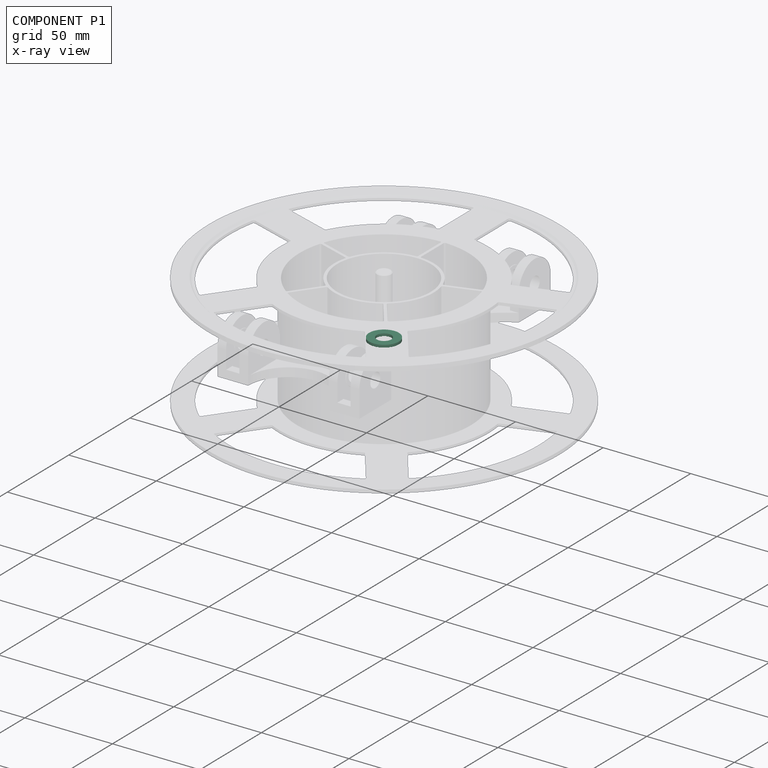
[diagram: component P1 — x-ray view]
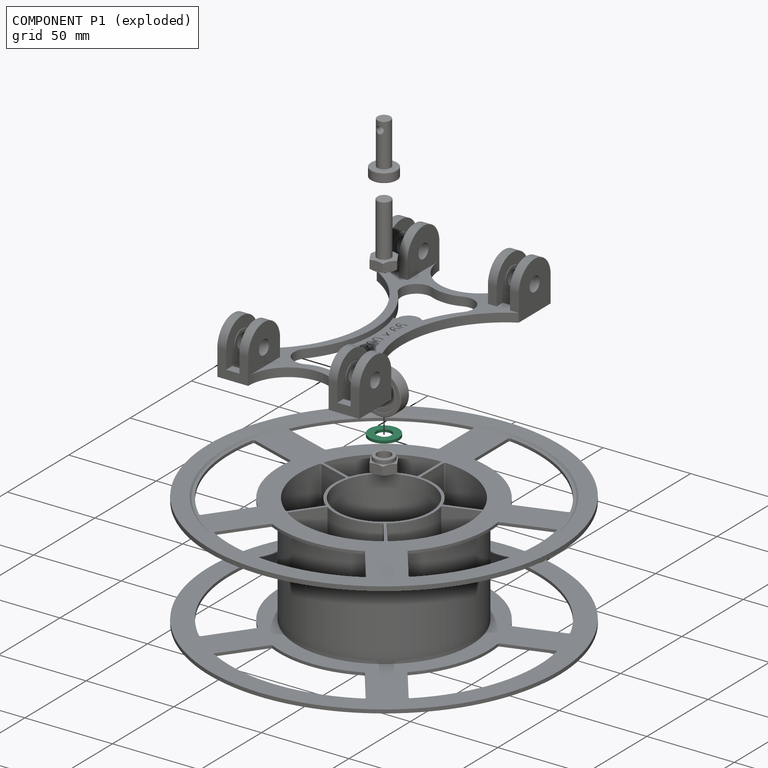
[diagram: component P1 — exploded]
COMPONENT P1 — recipe-attached ("Washer", modeled in this document).
Held by: resting contact with P0 (derived edge); resting contact with P2 (derived edge); resting contact with P4 (derived edge); resting contact with P5 (derived edge); resting contact with P6 (derived edge); resting contact with P7 (derived edge).
Construction recipe (the document's own serialized feature program — sketch geometry with constraints, then the solid features built on it; lengths are millimeters unless a unit is written):

FEATURE [Sketcher::SketchObject] Sketch016
  ArcFitTolerance = 1e-06
  AttachmentSupport = -> [XY_Plane004]
  FullyConstrained = true
  MakeInternals = false
  MapMode = 5
  expr: Constraints[2] = <<Spreadsheet>>.WasherOuterDiameter
  expr: Constraints[3] = <<Spreadsheet>>.WasherInnerDiameter
  sketch-geometry (2):
    g0: Circle CenterX=0 CenterY=0 CenterZ=0 NormalX=0 NormalY=0 NormalZ=1 AngleXU=0 Radius=4.2
    g1: Circle CenterX=0 CenterY=0 CenterZ=0 NormalX=0 NormalY=0 NormalZ=1 AngleXU=0 Radius=8.5
  constraints (4):
    c: Coincident(g0,g-1)
    c: Coincident(g1,g0)
    c: Diameter(g1) = 17
    c: Diameter(g0) = 8.4
FEATURE [PartDesign::Pad] Pad005
  Direction = (0,0,1)
  Length = 1.5
  Length2 = 10
  Profile = -> Sketch016
  ReferenceAxis = -> Sketch016 [N_Axis]
  Suppressed = false
  Type = 0
  expr: Length = <<Spreadsheet>>.WasherThickness
FEATURE [PartDesign::CoordinateSystem] Face1
  AttacherType = Attacher::AttachEngine3D
  AttachmentSupport = -> [Pad005]
  MapMode = 5
  Placement = pos=(0,0,1.5) rot=(0,0,1;0rad)
FEATURE [PartDesign::CoordinateSystem] Face2
  AttacherType = Attacher::AttachEngine3D
  AttachmentSupport = -> [Pad005]
  MapMode = 5
  Placement = pos=(0,0,0) rot=(1,0,0;3.14159rad)
FEATURE [PartDesign::Body] Body003  label="Washer"
  AllowCompound = false
  Group = -> [Sketch016,Pad005,Face1,Face2]
  Origin = -> Origin004
  Tip = -> Pad005
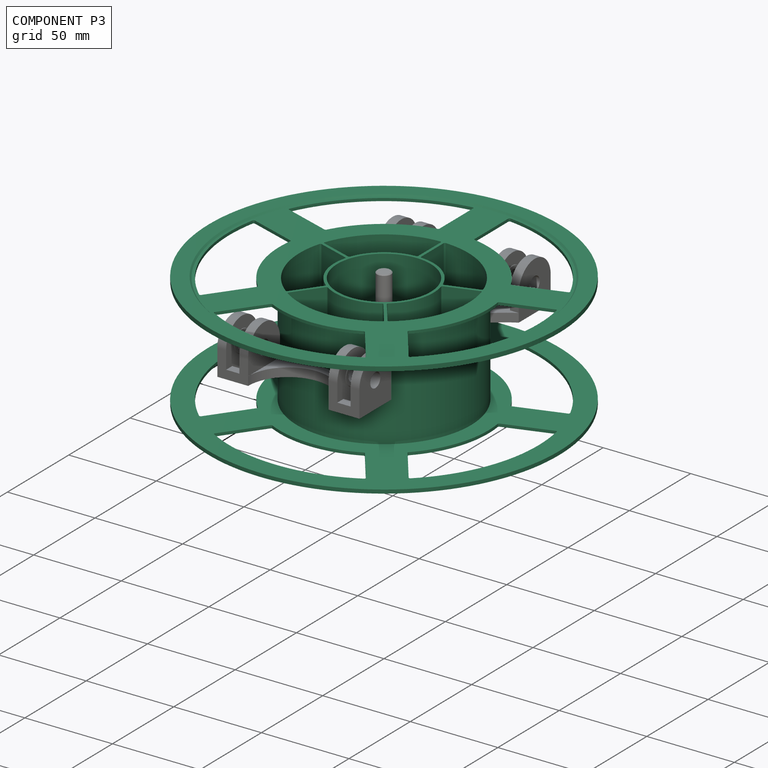
[diagram: component P3 — assembled]
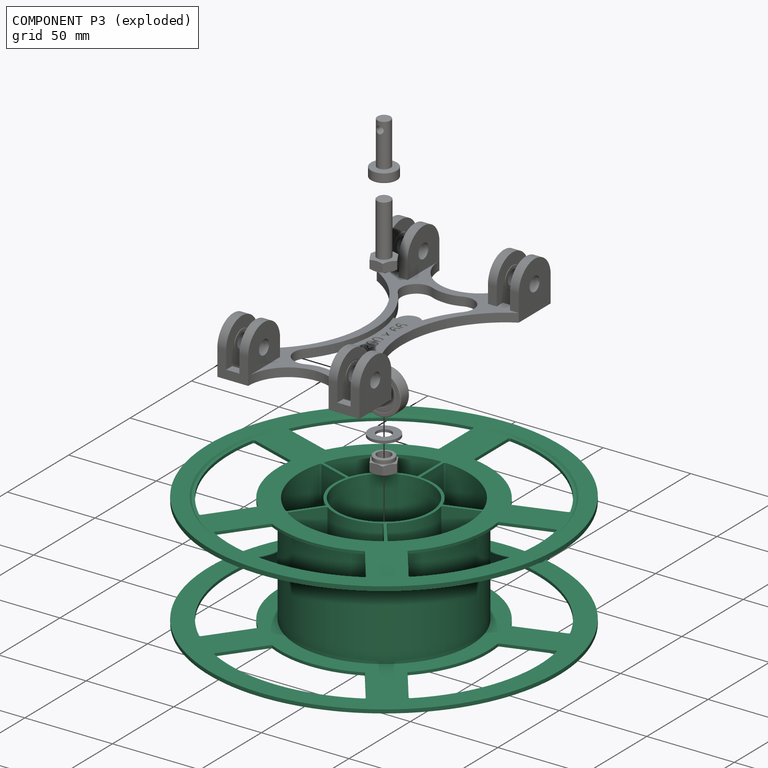
[diagram: component P3 — exploded]
COMPONENT P3 — recipe-attached ("Spool", modeled in this document).
Held by: resting contact with P5 (derived edge).
Construction recipe (the document's own serialized feature program — sketch geometry with constraints, then the solid features built on it; lengths are millimeters unless a unit is written):

FEATURE [Sketcher::SketchObject] Sketch022
  ArcFitTolerance = 1e-06
  AttachmentSupport = -> [XZ_Plane006]
  FullyConstrained = true
  MakeInternals = false
  MapMode = 5
  Placement = pos=(0,0,0) rot=(1,0,0;1.5708rad)
  expr: Constraints[22] = <<Spreadsheet>>.SpoolEdgeThickness
  expr: Constraints[24] = <<Spreadsheet>>.SpoolBodyMaterialThickness
  expr: Constraints[25] = <<Spreadsheet>>.SpoolCenterHoleDiameter / 2
  expr: Constraints[26] = <<Spreadsheet>>.SpoolHubDiameter / 2
  expr: Constraints[27] = <<Spreadsheet>>.SpoolWidePartsWidth
  expr: Constraints[28] = <<Spreadsheet>>.SpoolOuterWidth / 2
  expr: Constraints[29] = <<Spreadsheet>>.SpoolOuterDiameter / 2
  sketch-geometry (12):
    g0: LineSegment StartX=26.75 StartY=32.1 StartZ=0 EndX=26.75 EndY=-32.1 EndZ=0
    g1: LineSegment StartX=26.75 StartY=-32.1 StartZ=0 EndX=90 EndY=-32.1 EndZ=0
    g2: LineSegment StartX=90 StartY=-32.1 StartZ=0 EndX=109.1 EndY=-33 EndZ=0
    g3: LineSegment StartX=109.1 StartY=-33 StartZ=0 EndX=100 EndY=-33 EndZ=0
    g4: LineSegment StartX=100 StartY=-33 StartZ=0 EndX=100 EndY=-30.5 EndZ=0
    g5: LineSegment StartX=100 StartY=-30.5 StartZ=0 EndX=49.75 EndY=-30.5 EndZ=0
    g6: LineSegment StartX=49.75 StartY=-30.5 StartZ=0 EndX=49.75 EndY=30.5 EndZ=0
    g7: LineSegment StartX=49.75 StartY=30.5 StartZ=0 EndX=100 EndY=30.5 EndZ=0
    g8: LineSegment StartX=100 StartY=30.5 StartZ=0 EndX=100 EndY=33 EndZ=0
    g9: LineSegment StartX=100 StartY=33 StartZ=0 EndX=90.9 EndY=33 EndZ=0
    g10: LineSegment StartX=90.9 StartY=33 StartZ=0 EndX=90 EndY=32.1 EndZ=0
    g11: LineSegment StartX=90 StartY=32.1 StartZ=0 EndX=26.75 EndY=32.1 EndZ=0
  constraints (34):
    c: Coincident(g0,g1)
    c: Horizontal(g1)
    c: Coincident(g1,g2)
    c: Coincident(g2,g3)
    c: Horizontal(g3)
    c: Coincident(g3,g4)
    c: Vertical(g4)
    c: Coincident(g4,g5)
    c: Horizontal(g5)
    c: Coincident(g5,g6)
    c: Coincident(g6,g7)
    c: Horizontal(g7)
    c: Coincident(g7,g8)
    c: Coincident(g8,g9)
    c: Horizontal(g9)
    c: Coincident(g9,g10)
    c: Coincident(g10,g11)
    c: Coincident(g11,g0)
    c: Horizontal(g11)
    c: Vertical(g8)
    c: Equal(g1,g11)
    c: Symmetric(g0,g0,g-1)
    c: DistanceY(g8,g8) = 2.5
    c: Angle(g10,g11) = 2.35619
    c: DistanceY(g6,g0) = 1.6
    c: DistanceX(g0) = 26.75
    c: DistanceX(g6) = 49.75
    c: DistanceX(g10,g8) = 10
    c: DistanceY(g8) = 33
    c: DistanceX(g8) = 100
    c: Equal(g9,g3)
    c: Equal(g7,g5)
    c: Equal(g8,g4)
    c: Symmetric(g5,g6,g-1)
FEATURE [PartDesign::Revolution] Revolution004
  Angle = 360
  Angle2 = 60
  Axis = (0,2e-16,1)
  Base = (0,0,0)
  Placement = pos=(0,0,0) rot=(1,0,0;1.5708rad)
  Profile = -> Sketch022
  ReferenceAxis = -> Sketch022 [V_Axis]
  Refine = true
  Reversed = true
  Suppressed = false
  Type = 0
FEATURE [Sketcher::SketchObject] Sketch023
  ArcFitTolerance = 1e-06
  AttachmentSupport = -> [Revolution004]
  ExternalGeometry = -> [Revolution004]
  FullyConstrained = true
  MakeInternals = false
  MapMode = 5
  Placement = pos=(0,7.1e-15,32.1) rot=(0,0,1;3.14159rad)
  expr: Constraints[36] = 360 / <<Spreadsheet>>.SpoolNumberOfCutouts
  expr: Constraints[37] = <<Spreadsheet>>.SpoolBodyMaterialThickness
  expr: Constraints[38] = <<Spreadsheet>>.SpoolBodyMaterialThickness
  expr: Constraints[40] = <<Spreadsheet>>.SpoolBodyMaterialThickness / 2
  expr: Constraints[41] = <<Spreadsheet>>.SpoolBodyMaterialThickness / 2
  expr: Constraints[44] = <<Spreadsheet>>.SpoolWidePartsWidth
  expr: Constraints[45] = <<Spreadsheet>>.SpoolWidePartsWidth
  expr: Constraints[46] = <<Spreadsheet>>.SpoolBodyMaterialThickness
  sketch-geometry (20):
    g0: LineSegment [constr] StartX=0 StartY=0 StartZ=0 EndX=52.9007 EndY=72.8115 EndZ=0
    g1: LineSegment [constr] StartX=0 StartY=0 StartZ=0 EndX=-52.9007 EndY=72.8115 EndZ=0
    g2: LineSegment [constr] StartX=0 StartY=0 StartZ=0 EndX=-16.4609 EndY=24.0175 EndZ=0
    g3: LineSegment [constr] StartX=0 StartY=0 StartZ=0 EndX=16.4609 EndY=24.0175 EndZ=0
    g4: ArcOfCircle CenterX=0 CenterY=0 CenterZ=0 NormalX=0 NormalY=0 NormalZ=1 AngleXU=0 Radius=48.15 StartAngle=0.976275 EndAngle=2.16532
    g5: ArcOfCircle CenterX=0 CenterY=0 CenterZ=0 NormalX=0 NormalY=0 NormalZ=1 AngleXU=0 Radius=28.35 StartAngle=0.997394 EndAngle=2.1442
    g6: LineSegment StartX=16.4609 StartY=24.0175 StartZ=0 EndX=27.1685 EndY=38.7553 EndZ=0
    g7: LineSegment StartX=-16.4609 StartY=24.0175 StartZ=0 EndX=-27.1685 EndY=38.7553 EndZ=0
    g8: ArcOfCircle CenterX=-26.5213 CenterY=39.2255 CenterZ=0 NormalX=0 NormalY=0 NormalZ=1 AngleXU=0 Radius=0.8 StartAngle=2.16532 EndAngle=3.76991
    g9: ArcOfCircle CenterX=-15.8137 CenterY=24.4878 CenterZ=0 NormalX=0 NormalY=0 NormalZ=1 AngleXU=0 Radius=0.8 StartAngle=3.76991 EndAngle=5.28579
    g10: ArcOfCircle CenterX=15.8137 CenterY=24.4878 CenterZ=0 NormalX=0 NormalY=0 NormalZ=1 AngleXU=0 Radius=0.8 StartAngle=4.13899 EndAngle=5.65487
    g11: ArcOfCircle CenterX=26.5213 CenterY=39.2255 CenterZ=0 NormalX=0 NormalY=0 NormalZ=1 AngleXU=0 Radius=0.8 StartAngle=5.65487 EndAngle=7.25946
    g12: ArcOfCircle CenterX=0 CenterY=0 CenterZ=0 NormalX=0 NormalY=0 NormalZ=1 AngleXU=0 Radius=59.75 StartAngle=1.1218 EndAngle=2.01979
    g13: ArcOfCircle CenterX=0 CenterY=0 CenterZ=0 NormalX=0 NormalY=0 NormalZ=1 AngleXU=0 Radius=88.4 StartAngle=1.06608 EndAngle=2.07551
    g14: LineSegment StartX=-26.9295 StartY=54.0783 StartZ=0 EndX=-43.007 EndY=76.2071 EndZ=0
    g15: LineSegment StartX=26.9295 StartY=54.0783 StartZ=0 EndX=43.007 EndY=76.2071 EndZ=0
    g16: ArcOfCircle CenterX=26.2823 CenterY=54.5485 CenterZ=0 NormalX=0 NormalY=0 NormalZ=1 AngleXU=0 Radius=0.8 StartAngle=4.26339 EndAngle=5.65487
    g17: ArcOfCircle CenterX=42.3598 CenterY=76.6773 CenterZ=0 NormalX=0 NormalY=0 NormalZ=1 AngleXU=0 Radius=0.8 StartAngle=5.65487 EndAngle=7.34927
    g18: ArcOfCircle CenterX=-42.3598 CenterY=76.6773 CenterZ=0 NormalX=0 NormalY=0 NormalZ=1 AngleXU=0 Radius=0.8 StartAngle=2.07551 EndAngle=3.76991
    g19: ArcOfCircle CenterX=-26.2823 CenterY=54.5485 CenterZ=0 NormalX=0 NormalY=0 NormalZ=1 AngleXU=0 Radius=0.8 StartAngle=3.76991 EndAngle=5.16138
  constraints (48):
    c: Coincident(g0,g-1)
    c: PointOnObject(g0,g-4)
    c: Coincident(g1,g0)
    c: Coincident(g2,g0)
    c: Coincident(g3,g0)
    c: Symmetric(g0,g1,g-2)
    c: Symmetric(g2,g3,g-2)
    c: Coincident(g4,g0)
    c: Coincident(g5,g0)
    c: Equal(g11,g10)
    c: Equal(g10,g9)
    c: Equal(g9,g8)
    c: Tangent(g8,g4) = -1.5708
    c: Tangent(g9,g5) = 1.5708
    c: Tangent(g10,g5) = 1.5708
    c: Tangent(g10,g6) = -1.5708
    c: Tangent(g11,g6) = -1.5708
    c: Tangent(g11,g4) = -1.5708
    c: Tangent(g9,g7) = 1.5708
    c: Tangent(g8,g7) = 1.5708
    c: Coincident(g3,g6)
    c: Coincident(g2,g7)
    c: Coincident(g12,g0)
    c: Coincident(g13,g0)
    c: Tangent(g19,g12) = 1.5708
    c: Tangent(g19,g14) = 1.5708
    c: Tangent(g18,g14) = 1.5708
    c: Tangent(g18,g13) = -1.5708
    c: Tangent(g17,g15) = -1.5708
    c: Tangent(g16,g15) = -1.5708
    c: Tangent(g16,g12) = 1.5708
    c: Tangent(g17,g13) = -1.5708
    c: Equal(g16,g17)
    c: Equal(g17,g18)
    c: Equal(g18,g19)
    c: Equal(g19,g8)
    c: Angle(g0,g1) = 1.25664
    c: Distance(g5,g-5) = 1.6
    c: Distance(g4,g-3) = 1.6
    c: Parallel(g0,g6)
    c: Distance(g6,g0) = 0.8
    c: Radius(g11) = 0.8
    c: Parallel(g15,g0)
    c: Parallel(g14,g1)
    c: Distance(g14,g1) = 10
    c: Distance(g12,g-3) = 10
    c: Distance(g13,g-4) = 1.6
    c: Horizontal(g12,g12)
FEATURE [PartDesign::Pocket] Pocket002
  BaseFeature = -> Revolution004
  Direction = (0,0,-1)
  Length = 5
  Length2 = 5
  Placement = pos=(0,0,0) rot=(1,0,0;1.5708rad)
  Profile = -> Sketch023
  ReferenceAxis = -> Sketch023 [N_Axis]
  Refine = true
  Suppressed = false
  Type = 1
FEATURE [PartDesign::PolarPattern] PolarPattern
  Angle = 360
  Axis = -> Sketch023 [N_Axis]
  BaseFeature = -> Pocket002
  Mode = 0
  Occurrences = 5
  Offset = 120
  Originals = -> [Pocket002]
  Placement = pos=(0,0,0) rot=(1,0,0;1.5708rad)
  Refine = true
  Suppressed = false
  TransformMode = 0
  expr: Occurrences = <<Spreadsheet>>.SpoolNumberOfCutouts
FEATURE [PartDesign::CoordinateSystem] Center002
  AttacherType = Attacher::AttachEngine3D
FEATURE [PartDesign::Body] Body005  label="Spool"
  AllowCompound = false
  Group = -> [Sketch022,Revolution004,Sketch023,Pocket002,PolarPattern,Center002]
  Origin = -> Origin006
  Tip = -> PolarPattern
